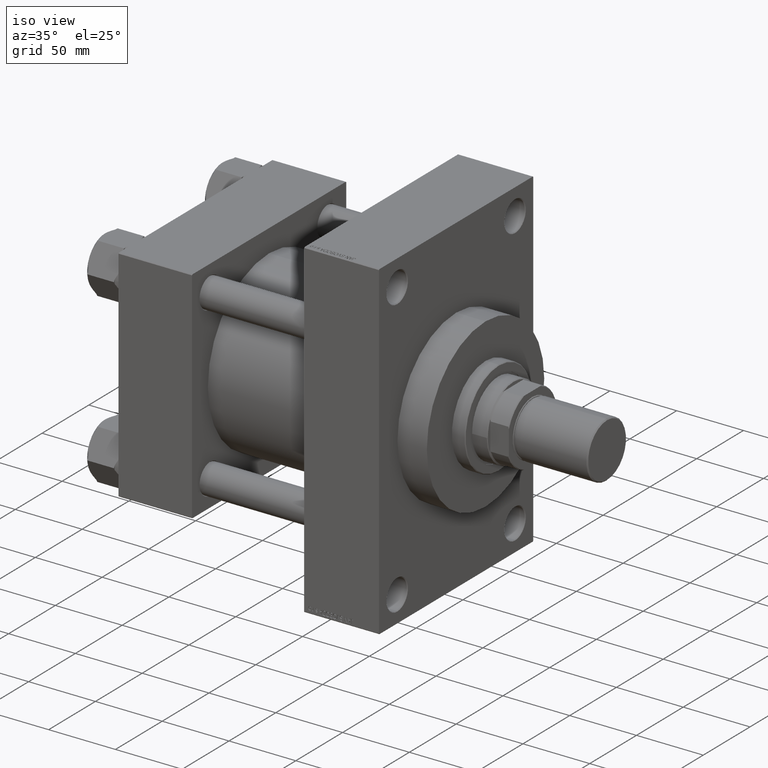
[diagram: clean part render]
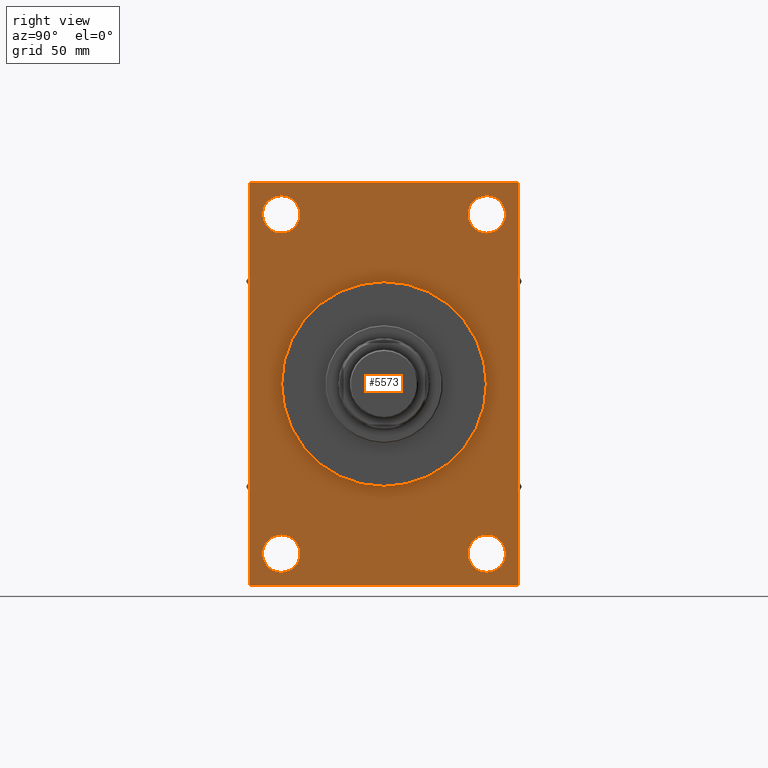
[diagram: tour spotlight — one face highlighted and labeled with its STEP entity id]
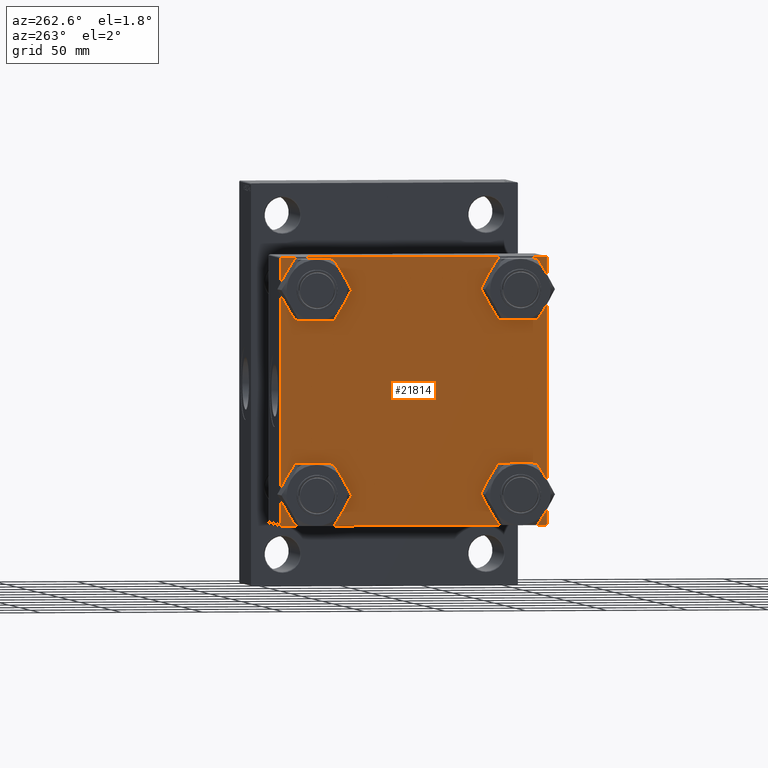
[diagram: tour spotlight — one face highlighted and labeled with its STEP entity id]
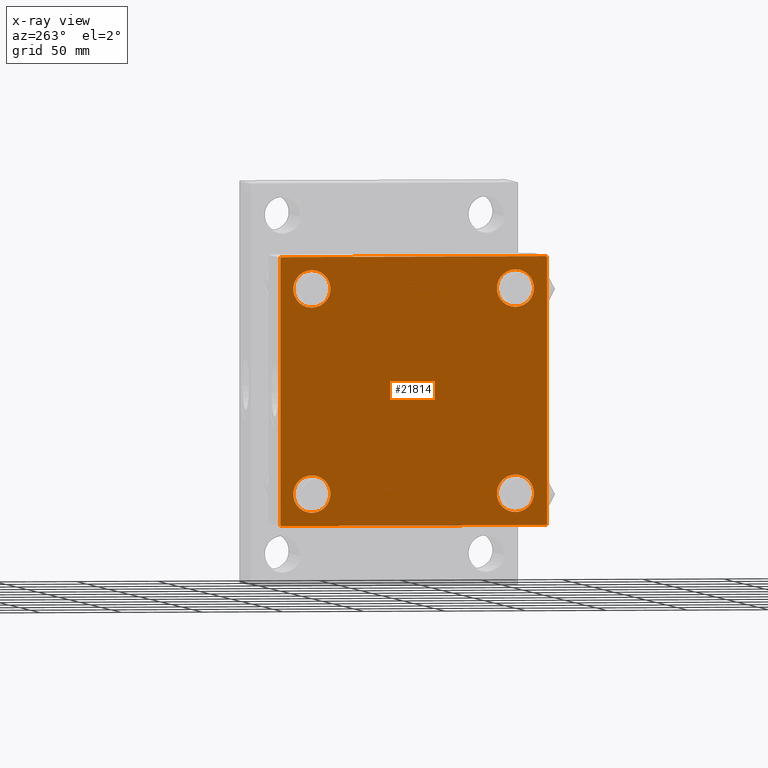
[diagram: x-ray of the same camera — body ghosted, this tour face saturated]
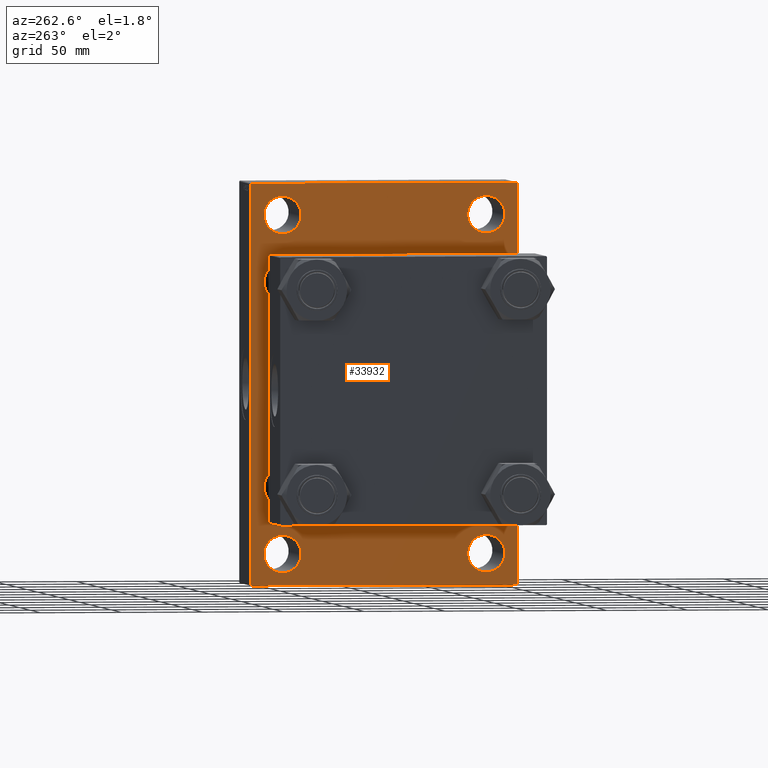
[diagram: tour spotlight — one face highlighted and labeled with its STEP entity id]
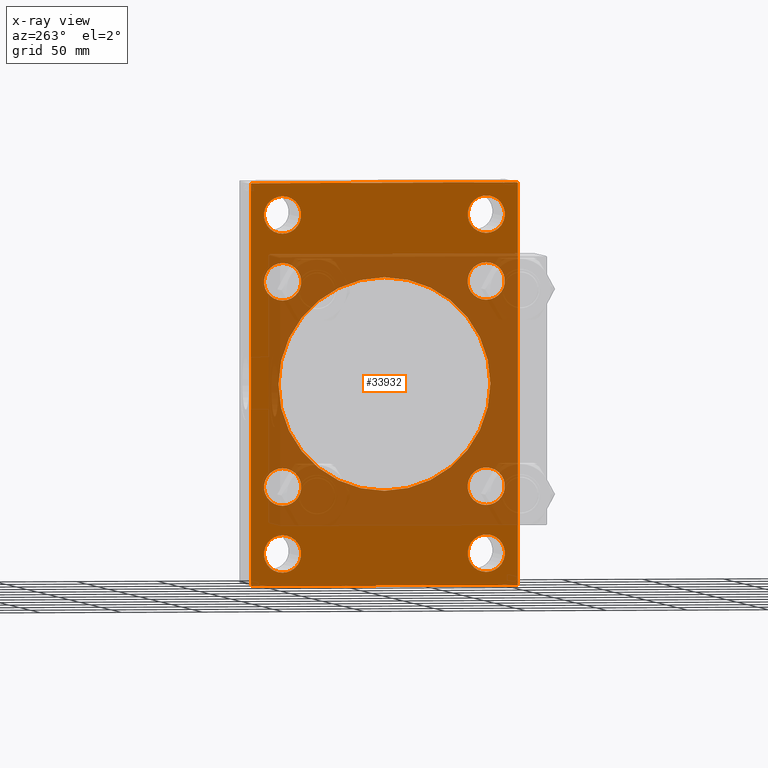
[diagram: x-ray of the same camera — body ghosted, this tour face saturated]
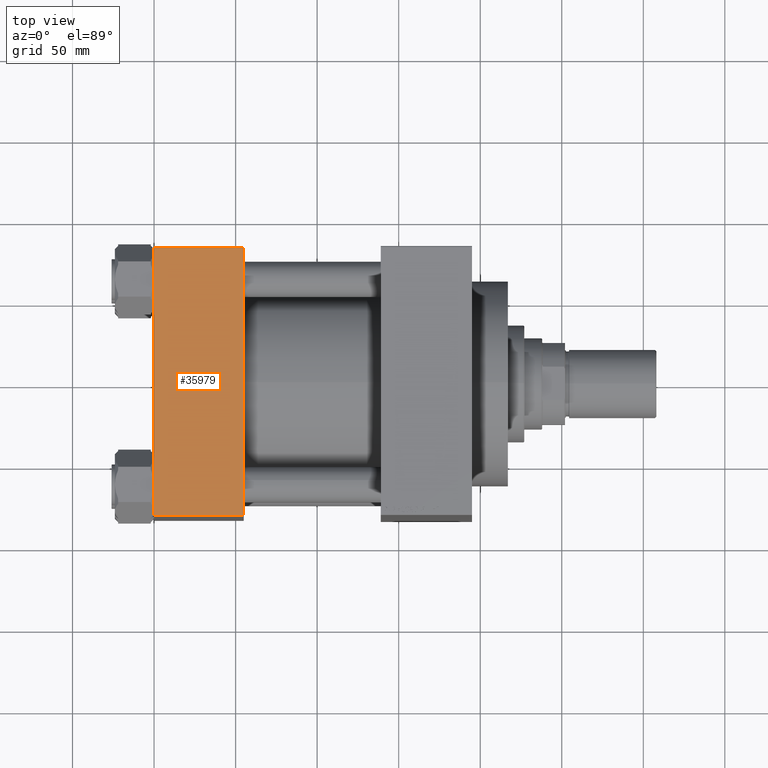
[diagram: tour spotlight — one face highlighted and labeled with its STEP entity id]
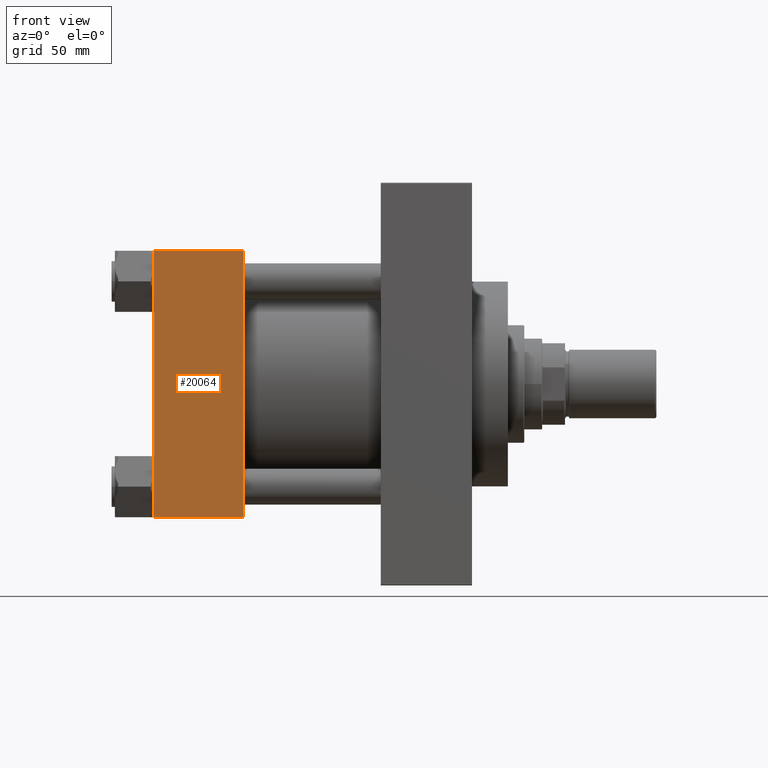
[diagram: tour spotlight — one face highlighted and labeled with its STEP entity id]
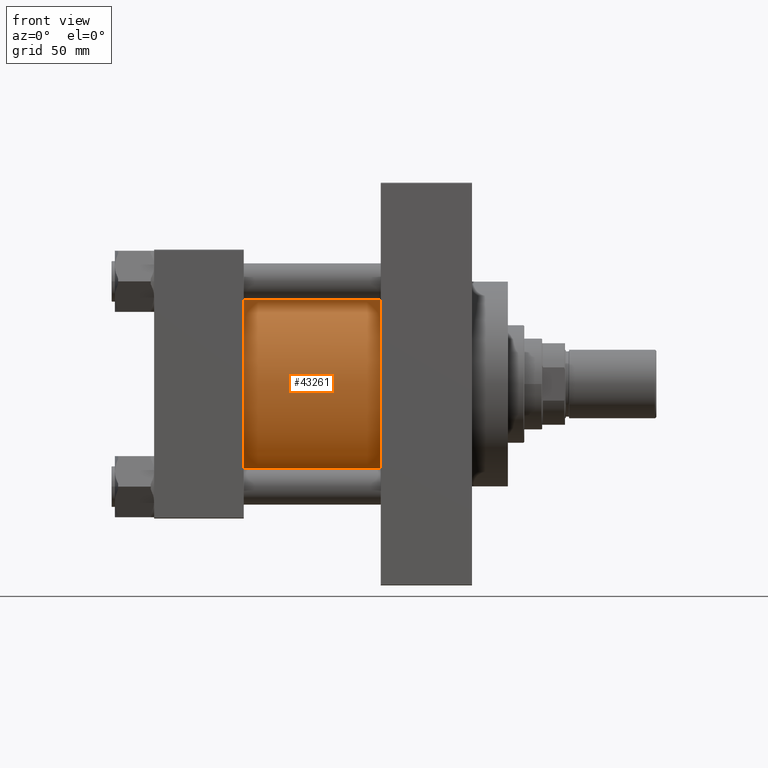
[diagram: tour spotlight — one face highlighted and labeled with its STEP entity id]
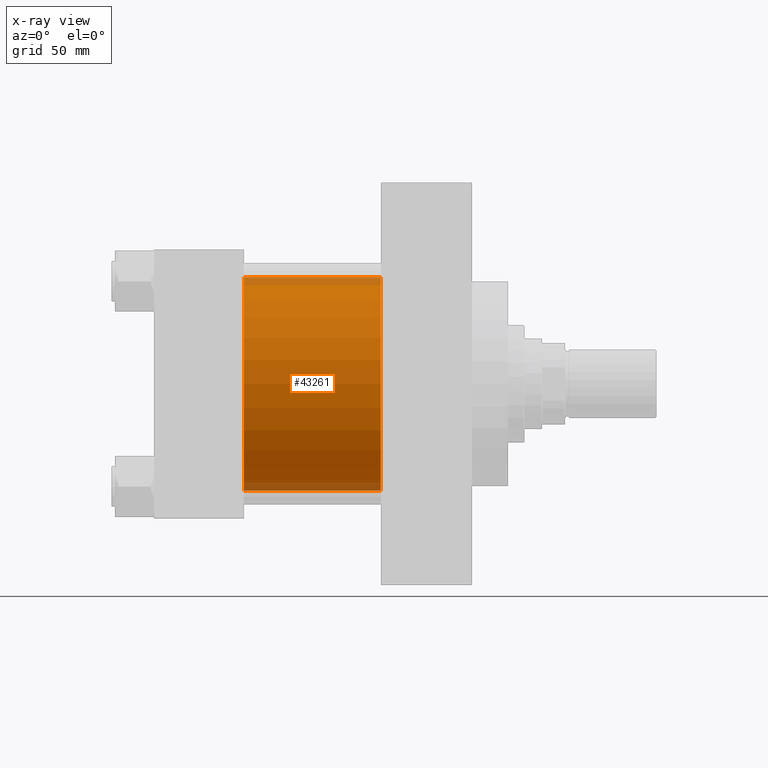
[diagram: x-ray of the same camera — body ghosted, this tour face saturated]
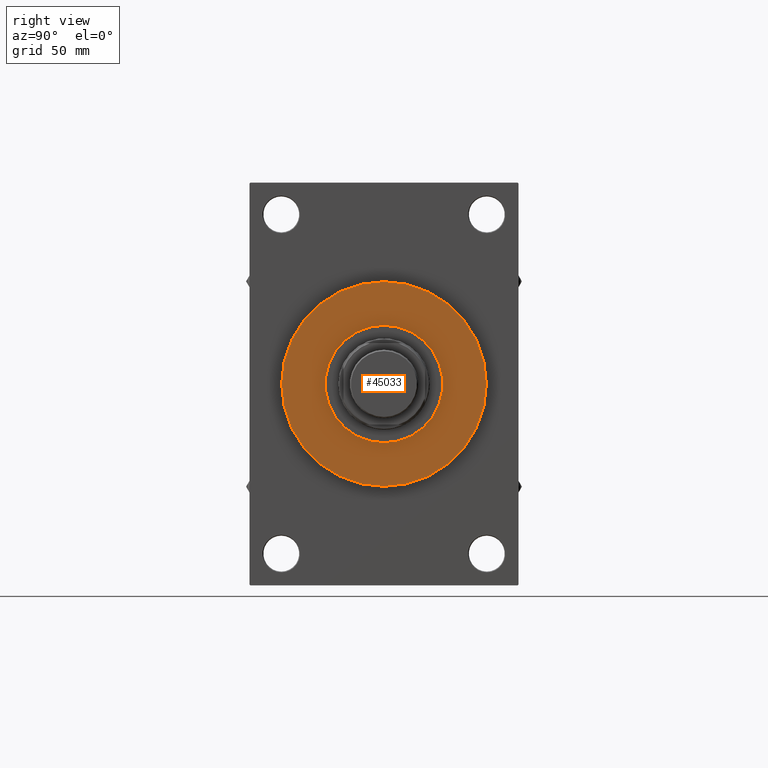
[diagram: tour spotlight — one face highlighted and labeled with its STEP entity id]
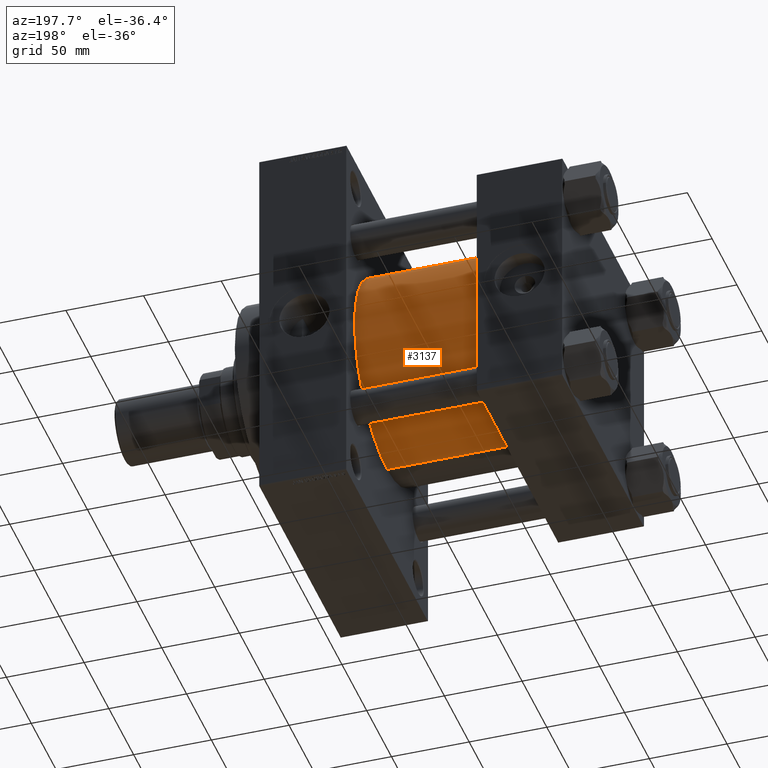
[diagram: tour spotlight — one face highlighted and labeled with its STEP entity id]
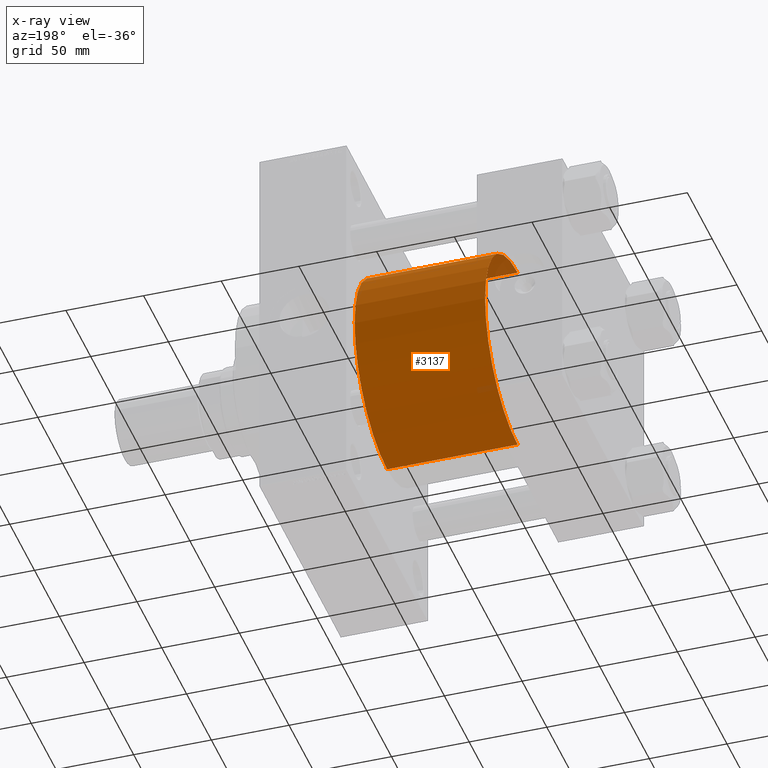
[diagram: x-ray of the same camera — body ghosted, this tour face saturated]
A machine part: a face-by-face anatomy tour. The part has 1163 B-rep faces; the first image is the clean iso view, then the 8 largest visible faces are spotlighted one at a time (largest first), each with its STEP entity span.

Face 1 — right view, entity #5573. In plain terms, the highlighted planar face has unit normal (-1, 0, 0).
Definition (entity closure, byte-faithful):
#64 = VECTOR ( 'NONE', #28029, 1000.000000000000000 ) ;
#107 = CIRCLE ( 'NONE', #21894, 62.75000000000000000 ) ;
#181 = CARTESIAN_POINT ( 'NONE',  ( 195.0000000000000000, 82.00000000000005684, -123.5000000000000000 ) ) ;
#256 = EDGE_CURVE ( 'NONE', #37295, #33401, #37728, .T. ) ;
#1784 = CARTESIAN_POINT ( 'NONE',  ( 195.0000000000000000, 82.50000000000000000, -123.0000000000000995 ) ) ;
#1947 = CARTESIAN_POINT ( 'NONE',  ( 195.0000000000000000, 82.00000000000004263, 123.5000000000000142 ) ) ;
#2178 = EDGE_CURVE ( 'NONE', #13064, #33583, #46768, .T. ) ;
#2316 = FACE_BOUND ( 'NONE', #20041, .T. ) ;
#2329 = CARTESIAN_POINT ( 'NONE',  ( 195.0000000000000000, 82.50000000000000000, -123.5000000000000000 ) ) ;
#2417 = AXIS2_PLACEMENT_3D ( 'NONE', #47241, #7069, #39948 ) ;
#2900 = VERTEX_POINT ( 'NONE', #43961 ) ;
#2978 = CIRCLE ( 'NONE', #31759, 11.50000000000006573 ) ;
#3801 = AXIS2_PLACEMENT_3D ( 'NONE', #13602, #32597, #28945 ) ;
#3972 = CIRCLE ( 'NONE', #2417, 11.49999999999989875 ) ;
#3997 = VECTOR ( 'NONE', #28699, 1000.000000000000000 ) ;
#4355 = CARTESIAN_POINT ( 'NONE',  ( 195.0000000000000000, 82.49999999999998579, 123.5000000000000142 ) ) ;
#4419 = DIRECTION ( 'NONE',  ( -1.000000000000000000, 0.000000000000000000, -0.000000000000000000 ) ) ;
#4664 = DIRECTION ( 'NONE',  ( 0.000000000000000000, 0.000000000000000000, 1.000000000000000000 ) ) ;
#5004 = EDGE_CURVE ( 'NONE', #39492, #5371, #30067, .T. ) ;
#5371 = VERTEX_POINT ( 'NONE', #19431 ) ;
#5573 = ADVANCED_FACE ( 'NONE', ( #2316, #10617, #6709, #28398, #18176, #32041 ), #25231, .F. ) ;
#5940 = VECTOR ( 'NONE', #9769, 1000.000000000000000 ) ;
#6345 = AXIS2_PLACEMENT_3D ( 'NONE', #37252, #30198, #37738 ) ;
#6709 = FACE_BOUND ( 'NONE', #30718, .T. ) ;
#6923 = VERTEX_POINT ( 'NONE', #25178 ) ;
#7069 = DIRECTION ( 'NONE',  ( -1.000000000000000000, 0.000000000000000000, -0.000000000000000000 ) ) ;
#7152 = DIRECTION ( 'NONE',  ( 0.000000000000000000, 0.000000000000000000, 1.000000000000000000 ) ) ;
#8162 = VERTEX_POINT ( 'NONE', #38668 ) ;
#8440 = CARTESIAN_POINT ( 'NONE',  ( 195.0000000000000000, -82.50000000000002842, 123.4999999999999716 ) ) ;
#8447 = CARTESIAN_POINT ( 'NONE',  ( 195.0000000000000000, 63.00000000000000000, 92.49999999999992895 ) ) ;
#8632 = AXIS2_PLACEMENT_3D ( 'NONE', #33896, #45789, #19050 ) ;
#8691 = ORIENTED_EDGE ( 'NONE', *, *, #20585, .T. ) ;
#9052 = CARTESIAN_POINT ( 'NONE',  ( 195.0000000000000000, -82.00000000000009948, 123.4999999999999716 ) ) ;
#9056 = AXIS2_PLACEMENT_3D ( 'NONE', #33131, #12982, #42681 ) ;
#9075 = EDGE_CURVE ( 'NONE', #8162, #11245, #48046, .T. ) ;
#9769 = DIRECTION ( 'NONE',  ( -0.000000000000000000, -0.7071067811865769936, -0.7071067811865181518 ) ) ;
#9985 = CIRCLE ( 'NONE', #42634, 11.50000000000006573 ) ;
#10002 = VERTEX_POINT ( 'NONE', #28509 ) ;
#10034 = ORIENTED_EDGE ( 'NONE', *, *, #2178, .T. ) ;
#10617 = FACE_BOUND ( 'NONE', #12128, .T. ) ;
#11036 = DIRECTION ( 'NONE',  ( -1.000000000000000000, 0.000000000000000000, -0.000000000000000000 ) ) ;
#11073 = ORIENTED_EDGE ( 'NONE', *, *, #32676, .T. ) ;
#11245 = VERTEX_POINT ( 'NONE', #8447 ) ;
#11596 = ORIENTED_EDGE ( 'NONE', *, *, #9075, .T. ) ;
#11609 = DIRECTION ( 'NONE',  ( 0.000000000000000000, 0.000000000000000000, -1.000000000000000000 ) ) ;
#11729 = CARTESIAN_POINT ( 'NONE',  ( 195.0000000000000000, -63.00000000000000000, 92.49999999999991473 ) ) ;
#12128 = EDGE_LOOP ( 'NONE', ( #20689, #45074 ) ) ;
#12713 = CIRCLE ( 'NONE', #44589, 11.49999999999989875 ) ;
#12958 = ORIENTED_EDGE ( 'NONE', *, *, #30114, .T. ) ;
#12982 = DIRECTION ( 'NONE',  ( -1.000000000000000000, 0.000000000000000000, -0.000000000000000000 ) ) ;
#13064 = VERTEX_POINT ( 'NONE', #9052 ) ;
#13602 = CARTESIAN_POINT ( 'NONE',  ( 195.0000000000000000, 63.00000000000000000, -104.0000000000000142 ) ) ;
#14178 = VERTEX_POINT ( 'NONE', #15058 ) ;
#15058 = CARTESIAN_POINT ( 'NONE',  ( 195.0000000000000000, 63.00000000000000000, -92.50000000000011369 ) ) ;
#15287 = DIRECTION ( 'NONE',  ( 0.000000000000000000, 0.000000000000000000, 1.000000000000000000 ) ) ;
#15414 = DIRECTION ( 'NONE',  ( 0.000000000000000000, 0.7071067811865573427, -0.7071067811865378028 ) ) ;
#16335 = ORIENTED_EDGE ( 'NONE', *, *, #5004, .T. ) ;
#16434 = LINE ( 'NONE', #28098, #32579 ) ;
#16563 = EDGE_CURVE ( 'NONE', #14178, #6923, #3972, .T. ) ;
#16588 = CARTESIAN_POINT ( 'NONE',  ( 195.0000000000000000, 0.000000000000000000, -62.75000000000000000 ) ) ;
#17030 = EDGE_CURVE ( 'NONE', #5371, #39492, #107, .T. ) ;
#17514 = EDGE_CURVE ( 'NONE', #6923, #14178, #34873, .T. ) ;
#18176 = FACE_BOUND ( 'NONE', #27767, .T. ) ;
#19050 = DIRECTION ( 'NONE',  ( 0.000000000000000000, 0.000000000000000000, 1.000000000000000000 ) ) ;
#19326 = EDGE_CURVE ( 'NONE', #21916, #27111, #2978, .T. ) ;
#19431 = CARTESIAN_POINT ( 'NONE',  ( 195.0000000000000000, 7.684658664649641591E-15, 62.75000000000000000 ) ) ;
#19694 = ORIENTED_EDGE ( 'NONE', *, *, #45230, .F. ) ;
#19907 = VERTEX_POINT ( 'NONE', #21149 ) ;
#19992 = EDGE_CURVE ( 'NONE', #27111, #21916, #9985, .T. ) ;
#20041 = EDGE_LOOP ( 'NONE', ( #40156, #35497 ) ) ;
#20585 = EDGE_CURVE ( 'NONE', #27006, #13064, #16434, .T. ) ;
#20689 = ORIENTED_EDGE ( 'NONE', *, *, #34691, .T. ) ;
#21149 = CARTESIAN_POINT ( 'NONE',  ( 195.0000000000000000, -82.00000000000002842, -123.5000000000000142 ) ) ;
#21238 = EDGE_LOOP ( 'NONE', ( #24416, #11596 ) ) ;
#21330 = DIRECTION ( 'NONE',  ( -1.000000000000000000, 0.000000000000000000, -0.000000000000000000 ) ) ;
#21894 = AXIS2_PLACEMENT_3D ( 'NONE', #29786, #11036, #36595 ) ;
#21916 = VERTEX_POINT ( 'NONE', #11729 ) ;
#22252 = LINE ( 'NONE', #25657, #46034 ) ;
#22638 = EDGE_LOOP ( 'NONE', ( #43085, #11073, #19694, #12958, #43215, #42795, #8691, #10034 ) ) ;
#24416 = ORIENTED_EDGE ( 'NONE', *, *, #28330, .T. ) ;
#24497 = CARTESIAN_POINT ( 'NONE',  ( 195.0000000000000000, -63.00000000000000000, 103.9999999999999858 ) ) ;
#25178 = CARTESIAN_POINT ( 'NONE',  ( 195.0000000000000000, 63.00000000000000000, -115.4999999999999147 ) ) ;
#25231 = PLANE ( 'NONE',  #25396 ) ;
#25243 = DIRECTION ( 'NONE',  ( 0.000000000000000000, -1.000000000000000000, -8.410780489584517938E-17 ) ) ;
#25396 = AXIS2_PLACEMENT_3D ( 'NONE', #25468, #36659, #29128 ) ;
#25468 = CARTESIAN_POINT ( 'NONE',  ( 195.0000000000000000, 0.000000000000000000, 0.000000000000000000 ) ) ;
#25657 = CARTESIAN_POINT ( 'NONE',  ( 195.0000000000000000, -82.00000000000002842, -123.5000000000000142 ) ) ;
#25674 = CARTESIAN_POINT ( 'NONE',  ( 195.0000000000000000, -63.00000000000000000, -104.0000000000000142 ) ) ;
#26773 = EDGE_CURVE ( 'NONE', #33583, #10002, #42242, .T. ) ;
#26962 = ORIENTED_EDGE ( 'NONE', *, *, #17514, .T. ) ;
#27006 = VERTEX_POINT ( 'NONE', #41002 ) ;
#27111 = VERTEX_POINT ( 'NONE', #33705 ) ;
#27767 = EDGE_LOOP ( 'NONE', ( #16335, #33578 ) ) ;
#28029 = DIRECTION ( 'NONE',  ( 0.000000000000000000, -0.7071067811865081598, 0.7071067811865868746 ) ) ;
#28098 = CARTESIAN_POINT ( 'NONE',  ( 195.0000000000000000, 82.49999999999998579, 123.5000000000000142 ) ) ;
#28330 = EDGE_CURVE ( 'NONE', #11245, #8162, #34284, .T. ) ;
#28398 = FACE_BOUND ( 'NONE', #21238, .T. ) ;
#28509 = CARTESIAN_POINT ( 'NONE',  ( 195.0000000000000000, -82.50000000000002842, -123.0000000000000284 ) ) ;
#28699 = DIRECTION ( 'NONE',  ( -0.000000000000000000, 0.7071067811865769936, 0.7071067811865181518 ) ) ;
#28754 = VECTOR ( 'NONE', #11609, 1000.000000000000000 ) ;
#28945 = DIRECTION ( 'NONE',  ( 0.000000000000000000, 0.000000000000000000, 1.000000000000000000 ) ) ;
#29128 = DIRECTION ( 'NONE',  ( -0.000000000000000000, 0.000000000000000000, 1.000000000000000000 ) ) ;
#29737 = EDGE_CURVE ( 'NONE', #37295, #27006, #42148, .T. ) ;
#29786 = CARTESIAN_POINT ( 'NONE',  ( 195.0000000000000000, 0.000000000000000000, 0.000000000000000000 ) ) ;
#30067 = CIRCLE ( 'NONE', #9056, 62.75000000000000000 ) ;
#30114 = EDGE_CURVE ( 'NONE', #32131, #33401, #32097, .T. ) ;
#30198 = DIRECTION ( 'NONE',  ( -1.000000000000000000, 0.000000000000000000, -0.000000000000000000 ) ) ;
#30718 = EDGE_LOOP ( 'NONE', ( #26962, #41302 ) ) ;
#31729 = AXIS2_PLACEMENT_3D ( 'NONE', #38501, #4419, #4664 ) ;
#31730 = EDGE_CURVE ( 'NONE', #37546, #2900, #33622, .T. ) ;
#31759 = AXIS2_PLACEMENT_3D ( 'NONE', #24497, #21330, #43700 ) ;
#32041 = FACE_OUTER_BOUND ( 'NONE', #22638, .T. ) ;
#32097 = LINE ( 'NONE', #46949, #3997 ) ;
#32131 = VERTEX_POINT ( 'NONE', #181 ) ;
#32479 = CARTESIAN_POINT ( 'NONE',  ( 195.0000000000000000, -82.50000000000002842, 123.0000000000000853 ) ) ;
#32579 = VECTOR ( 'NONE', #42932, 1000.000000000000000 ) ;
#32597 = DIRECTION ( 'NONE',  ( -1.000000000000000000, 0.000000000000000000, -0.000000000000000000 ) ) ;
#32676 = EDGE_CURVE ( 'NONE', #10002, #19907, #22252, .T. ) ;
#33131 = CARTESIAN_POINT ( 'NONE',  ( 195.0000000000000000, 0.000000000000000000, 0.000000000000000000 ) ) ;
#33401 = VERTEX_POINT ( 'NONE', #1784 ) ;
#33578 = ORIENTED_EDGE ( 'NONE', *, *, #17030, .T. ) ;
#33583 = VERTEX_POINT ( 'NONE', #32479 ) ;
#33622 = CIRCLE ( 'NONE', #6345, 11.49999999999989875 ) ;
#33705 = CARTESIAN_POINT ( 'NONE',  ( 195.0000000000000000, -63.00000000000000000, 115.5000000000000426 ) ) ;
#33896 = CARTESIAN_POINT ( 'NONE',  ( 195.0000000000000000, 63.00000000000000000, 104.0000000000000000 ) ) ;
#34284 = CIRCLE ( 'NONE', #8632, 11.50000000000006573 ) ;
#34691 = EDGE_CURVE ( 'NONE', #2900, #37546, #12713, .T. ) ;
#34873 = CIRCLE ( 'NONE', #3801, 11.49999999999989875 ) ;
#35497 = ORIENTED_EDGE ( 'NONE', *, *, #19992, .T. ) ;
#36199 = CARTESIAN_POINT ( 'NONE',  ( 195.0000000000000000, 82.49999999999998579, 123.0000000000000142 ) ) ;
#36595 = DIRECTION ( 'NONE',  ( 0.000000000000000000, 0.000000000000000000, 1.000000000000000000 ) ) ;
#36659 = DIRECTION ( 'NONE',  ( -1.000000000000000000, 0.000000000000000000, -0.000000000000000000 ) ) ;
#37252 = CARTESIAN_POINT ( 'NONE',  ( 195.0000000000000000, -63.00000000000000000, -104.0000000000000142 ) ) ;
#37295 = VERTEX_POINT ( 'NONE', #36199 ) ;
#37546 = VERTEX_POINT ( 'NONE', #40470 ) ;
#37728 = LINE ( 'NONE', #4355, #47071 ) ;
#37738 = DIRECTION ( 'NONE',  ( 0.000000000000000000, 0.000000000000000000, 1.000000000000000000 ) ) ;
#37919 = DIRECTION ( 'NONE',  ( -1.000000000000000000, 0.000000000000000000, -0.000000000000000000 ) ) ;
#38501 = CARTESIAN_POINT ( 'NONE',  ( 195.0000000000000000, 63.00000000000000000, 104.0000000000000000 ) ) ;
#38668 = CARTESIAN_POINT ( 'NONE',  ( 195.0000000000000000, 63.00000000000000000, 115.5000000000000568 ) ) ;
#39492 = VERTEX_POINT ( 'NONE', #16588 ) ;
#39948 = DIRECTION ( 'NONE',  ( 0.000000000000000000, 0.000000000000000000, 1.000000000000000000 ) ) ;
#40156 = ORIENTED_EDGE ( 'NONE', *, *, #19326, .T. ) ;
#40328 = LINE ( 'NONE', #2329, #48011 ) ;
#40470 = CARTESIAN_POINT ( 'NONE',  ( 195.0000000000000000, -63.00000000000000000, -92.50000000000011369 ) ) ;
#40518 = DIRECTION ( 'NONE',  ( -1.000000000000000000, 0.000000000000000000, -0.000000000000000000 ) ) ;
#41002 = CARTESIAN_POINT ( 'NONE',  ( 195.0000000000000000, 82.00000000000004263, 123.5000000000000142 ) ) ;
#41302 = ORIENTED_EDGE ( 'NONE', *, *, #16563, .T. ) ;
#42148 = LINE ( 'NONE', #1947, #64 ) ;
#42242 = LINE ( 'NONE', #8440, #28754 ) ;
#42634 = AXIS2_PLACEMENT_3D ( 'NONE', #48147, #37919, #15287 ) ;
#42681 = DIRECTION ( 'NONE',  ( 0.000000000000000000, 0.000000000000000000, 1.000000000000000000 ) ) ;
#42795 = ORIENTED_EDGE ( 'NONE', *, *, #29737, .T. ) ;
#42932 = DIRECTION ( 'NONE',  ( 0.000000000000000000, -1.000000000000000000, -2.523234146875355505E-16 ) ) ;
#43085 = ORIENTED_EDGE ( 'NONE', *, *, #26773, .T. ) ;
#43110 = CARTESIAN_POINT ( 'NONE',  ( 195.0000000000000000, -82.50000000000002842, 123.0000000000000853 ) ) ;
#43215 = ORIENTED_EDGE ( 'NONE', *, *, #256, .F. ) ;
#43700 = DIRECTION ( 'NONE',  ( 0.000000000000000000, 0.000000000000000000, 1.000000000000000000 ) ) ;
#43961 = CARTESIAN_POINT ( 'NONE',  ( 195.0000000000000000, -63.00000000000000000, -115.4999999999999147 ) ) ;
#44589 = AXIS2_PLACEMENT_3D ( 'NONE', #25674, #40518, #7152 ) ;
#45074 = ORIENTED_EDGE ( 'NONE', *, *, #31730, .T. ) ;
#45230 = EDGE_CURVE ( 'NONE', #32131, #19907, #40328, .T. ) ;
#45789 = DIRECTION ( 'NONE',  ( -1.000000000000000000, 0.000000000000000000, -0.000000000000000000 ) ) ;
#46034 = VECTOR ( 'NONE', #15414, 1000.000000000000000 ) ;
#46443 = DIRECTION ( 'NONE',  ( 0.000000000000000000, 5.618537574013950123E-17, -1.000000000000000000 ) ) ;
#46768 = LINE ( 'NONE', #43110, #5940 ) ;
#46949 = CARTESIAN_POINT ( 'NONE',  ( 195.0000000000000000, 82.50000000000000000, -123.0000000000000995 ) ) ;
#47071 = VECTOR ( 'NONE', #46443, 1000.000000000000000 ) ;
#47241 = CARTESIAN_POINT ( 'NONE',  ( 195.0000000000000000, 63.00000000000000000, -104.0000000000000142 ) ) ;
#48011 = VECTOR ( 'NONE', #25243, 1000.000000000000000 ) ;
#48046 = CIRCLE ( 'NONE', #31729, 11.50000000000006573 ) ;
#48147 = CARTESIAN_POINT ( 'NONE',  ( 195.0000000000000000, -63.00000000000000000, 103.9999999999999858 ) ) ;

Face 2 — auxiliary view, entity #21814. An x-ray twin of the same camera follows (body ghosted, this face saturated) — the face is partly hidden behind the body. In plain terms, the highlighted planar face has unit normal (-1, 0, 0).
Definition (entity closure, byte-faithful):
#163 = DIRECTION ( 'NONE',  ( 0.000000000000000000, -1.000000000000000000, -1.682156097916903588E-16 ) ) ;
#374 = CARTESIAN_POINT ( 'NONE',  ( 0.000000000000000000, 62.95000000000000284, 62.95000000000000284 ) ) ;
#409 = CARTESIAN_POINT ( 'NONE',  ( 0.000000000000000000, 82.50000000000002842, -82.49999999999997158 ) ) ;
#877 = CARTESIAN_POINT ( 'NONE',  ( 0.000000000000000000, -62.94999999999998153, 62.95000000000001705 ) ) ;
#880 = LINE ( 'NONE', #409, #20135 ) ;
#1327 = DIRECTION ( 'NONE',  ( 1.000000000000000000, -0.000000000000000000, -0.000000000000000000 ) ) ;
#1817 = DIRECTION ( 'NONE',  ( 0.000000000000000000, 0.000000000000000000, 1.000000000000000000 ) ) ;
#2266 = AXIS2_PLACEMENT_3D ( 'NONE', #3191, #43862, #29271 ) ;
#2280 = CARTESIAN_POINT ( 'NONE',  ( 0.000000000000000000, 62.95000000000000284, -62.95000000000000284 ) ) ;
#2299 = AXIS2_PLACEMENT_3D ( 'NONE', #8668, #1327, #31058 ) ;
#2336 = AXIS2_PLACEMENT_3D ( 'NONE', #22956, #40948, #26111 ) ;
#2437 = CARTESIAN_POINT ( 'NONE',  ( 0.000000000000000000, -62.94999999999998153, -51.45000000000000995 ) ) ;
#2506 = CIRCLE ( 'NONE', #19645, 11.50000000000001066 ) ;
#2698 = EDGE_CURVE ( 'NONE', #19758, #9016, #28154, .T. ) ;
#2852 = EDGE_CURVE ( 'NONE', #26707, #5318, #21546, .T. ) ;
#3009 = EDGE_CURVE ( 'NONE', #38899, #14105, #17638, .T. ) ;
#3084 = VERTEX_POINT ( 'NONE', #10079 ) ;
#3191 = CARTESIAN_POINT ( 'NONE',  ( 0.000000000000000000, 0.000000000000000000, 0.000000000000000000 ) ) ;
#3258 = EDGE_LOOP ( 'NONE', ( #15643, #26236 ) ) ;
#3291 = DIRECTION ( 'NONE',  ( 0.000000000000000000, 0.000000000000000000, 1.000000000000000000 ) ) ;
#4577 = ORIENTED_EDGE ( 'NONE', *, *, #28966, .T. ) ;
#4609 = CARTESIAN_POINT ( 'NONE',  ( 0.000000000000000000, 82.25000000000001421, -82.25000000000001421 ) ) ;
#5025 = CARTESIAN_POINT ( 'NONE',  ( 0.000000000000000000, 62.95000000000000284, -51.44999999999999574 ) ) ;
#5063 = EDGE_CURVE ( 'NONE', #38248, #17214, #16807, .T. ) ;
#5318 = VERTEX_POINT ( 'NONE', #29419 ) ;
#5683 = DIRECTION ( 'NONE',  ( 0.000000000000000000, 0.000000000000000000, -1.000000000000000000 ) ) ;
#5844 = ORIENTED_EDGE ( 'NONE', *, *, #27356, .T. ) ;
#6982 = CARTESIAN_POINT ( 'NONE',  ( 0.000000000000000000, 62.95000000000000284, 51.44999999999999574 ) ) ;
#7274 = ORIENTED_EDGE ( 'NONE', *, *, #3009, .T. ) ;
#7516 = ORIENTED_EDGE ( 'NONE', *, *, #42647, .T. ) ;
#7730 = EDGE_CURVE ( 'NONE', #21501, #30250, #8347, .T. ) ;
#7966 = ORIENTED_EDGE ( 'NONE', *, *, #11912, .T. ) ;
#8347 = CIRCLE ( 'NONE', #44080, 11.50000000000001066 ) ;
#8454 = EDGE_CURVE ( 'NONE', #41822, #39563, #24698, .T. ) ;
#8668 = CARTESIAN_POINT ( 'NONE',  ( 0.000000000000000000, -62.94999999999998153, 62.95000000000001705 ) ) ;
#9016 = VERTEX_POINT ( 'NONE', #22481 ) ;
#10079 = CARTESIAN_POINT ( 'NONE',  ( 0.000000000000000000, 82.00000000000005684, -82.49999999999997158 ) ) ;
#10170 = VECTOR ( 'NONE', #22115, 1000.000000000000000 ) ;
#11237 = LINE ( 'NONE', #25844, #35392 ) ;
#11447 = CARTESIAN_POINT ( 'NONE',  ( 0.000000000000000000, -82.00000000000000000, -82.50000000000000000 ) ) ;
#11912 = EDGE_CURVE ( 'NONE', #3084, #31709, #880, .T. ) ;
#11924 = EDGE_LOOP ( 'NONE', ( #5844, #43332 ) ) ;
#11932 = DIRECTION ( 'NONE',  ( -0.000000000000000000, -0.7071067811865474617, -0.7071067811865474617 ) ) ;
#12588 = DIRECTION ( 'NONE',  ( 0.000000000000000000, 0.000000000000000000, 1.000000000000000000 ) ) ;
#12823 = CARTESIAN_POINT ( 'NONE',  ( 0.000000000000000000, -62.94999999999998153, 51.45000000000000995 ) ) ;
#12935 = AXIS2_PLACEMENT_3D ( 'NONE', #27026, #30208, #34093 ) ;
#12951 = ORIENTED_EDGE ( 'NONE', *, *, #33103, .T. ) ;
#13812 = AXIS2_PLACEMENT_3D ( 'NONE', #877, #23075, #1817 ) ;
#14105 = VERTEX_POINT ( 'NONE', #24583 ) ;
#14409 = FACE_BOUND ( 'NONE', #3258, .T. ) ;
#14472 = ORIENTED_EDGE ( 'NONE', *, *, #47600, .T. ) ;
#14543 = CARTESIAN_POINT ( 'NONE',  ( 0.000000000000000000, 82.50000000000002842, 82.50000000000002842 ) ) ;
#14648 = FACE_BOUND ( 'NONE', #17059, .T. ) ;
#14717 = ORIENTED_EDGE ( 'NONE', *, *, #2698, .F. ) ;
#14890 = FACE_BOUND ( 'NONE', #11924, .T. ) ;
#15616 = VERTEX_POINT ( 'NONE', #44729 ) ;
#15642 = EDGE_CURVE ( 'NONE', #15616, #35480, #32576, .T. ) ;
#15643 = ORIENTED_EDGE ( 'NONE', *, *, #22470, .T. ) ;
#15688 = CARTESIAN_POINT ( 'NONE',  ( 0.000000000000000000, -82.25000000000115108, -82.24999999999886313 ) ) ;
#16692 = DIRECTION ( 'NONE',  ( 1.000000000000000000, -0.000000000000000000, -0.000000000000000000 ) ) ;
#16807 = CIRCLE ( 'NONE', #12935, 11.50000000000001066 ) ;
#17059 = EDGE_LOOP ( 'NONE', ( #12951, #31873 ) ) ;
#17214 = VERTEX_POINT ( 'NONE', #2437 ) ;
#17638 = LINE ( 'NONE', #32473, #27749 ) ;
#18286 = EDGE_CURVE ( 'NONE', #31709, #9016, #45143, .T. ) ;
#18322 = FACE_BOUND ( 'NONE', #24125, .T. ) ;
#19645 = AXIS2_PLACEMENT_3D ( 'NONE', #42998, #24761, #12588 ) ;
#19758 = VERTEX_POINT ( 'NONE', #42796 ) ;
#20135 = VECTOR ( 'NONE', #163, 1000.000000000000000 ) ;
#21061 = DIRECTION ( 'NONE',  ( 0.000000000000000000, 0.000000000000000000, 1.000000000000000000 ) ) ;
#21501 = VERTEX_POINT ( 'NONE', #27449 ) ;
#21546 = CIRCLE ( 'NONE', #37073, 11.50000000000001066 ) ;
#21814 = ADVANCED_FACE ( 'NONE', ( #14409, #14890, #14648, #18322, #33403 ), #25854, .T. ) ;
#22115 = DIRECTION ( 'NONE',  ( 0.000000000000000000, -1.000000000000000000, -8.410780489584519171E-17 ) ) ;
#22470 = EDGE_CURVE ( 'NONE', #39563, #41822, #23357, .T. ) ;
#22481 = CARTESIAN_POINT ( 'NONE',  ( 0.000000000000000000, -82.50000000000000000, -81.99999999999998579 ) ) ;
#22956 = CARTESIAN_POINT ( 'NONE',  ( 0.000000000000000000, -62.94999999999998153, -62.95000000000001705 ) ) ;
#23075 = DIRECTION ( 'NONE',  ( 1.000000000000000000, -0.000000000000000000, -0.000000000000000000 ) ) ;
#23357 = CIRCLE ( 'NONE', #2299, 11.50000000000001066 ) ;
#24125 = EDGE_LOOP ( 'NONE', ( #25853, #32868 ) ) ;
#24583 = CARTESIAN_POINT ( 'NONE',  ( 0.000000000000000000, 82.50000000000002842, -82.00000000000000000 ) ) ;
#24698 = CIRCLE ( 'NONE', #13812, 11.50000000000001066 ) ;
#24761 = DIRECTION ( 'NONE',  ( 1.000000000000000000, -0.000000000000000000, -0.000000000000000000 ) ) ;
#24994 = CARTESIAN_POINT ( 'NONE',  ( 0.000000000000000000, -82.49999999999997158, 82.50000000000001421 ) ) ;
#25165 = AXIS2_PLACEMENT_3D ( 'NONE', #33109, #37241, #36997 ) ;
#25440 = ORIENTED_EDGE ( 'NONE', *, *, #15642, .F. ) ;
#25630 = CARTESIAN_POINT ( 'NONE',  ( 0.000000000000000000, -62.94999999999998153, -74.45000000000003126 ) ) ;
#25844 = CARTESIAN_POINT ( 'NONE',  ( 0.000000000000000000, -82.25000000000000000, 82.25000000000000000 ) ) ;
#25853 = ORIENTED_EDGE ( 'NONE', *, *, #38719, .T. ) ;
#25854 = PLANE ( 'NONE',  #2266 ) ;
#26111 = DIRECTION ( 'NONE',  ( 0.000000000000000000, 0.000000000000000000, 1.000000000000000000 ) ) ;
#26236 = ORIENTED_EDGE ( 'NONE', *, *, #8454, .T. ) ;
#26707 = VERTEX_POINT ( 'NONE', #6982 ) ;
#27026 = CARTESIAN_POINT ( 'NONE',  ( 0.000000000000000000, -62.94999999999998153, -62.95000000000001705 ) ) ;
#27056 = VECTOR ( 'NONE', #27828, 999.9999999999998863 ) ;
#27356 = EDGE_CURVE ( 'NONE', #17214, #38248, #32678, .T. ) ;
#27449 = CARTESIAN_POINT ( 'NONE',  ( 0.000000000000000000, 62.95000000000000284, -74.45000000000001705 ) ) ;
#27709 = CARTESIAN_POINT ( 'NONE',  ( 0.000000000000000000, 82.50000000000002842, 82.00000000000005684 ) ) ;
#27749 = VECTOR ( 'NONE', #5683, 1000.000000000000000 ) ;
#27828 = DIRECTION ( 'NONE',  ( 0.000000000000000000, -0.7071067811865376918, 0.7071067811865574537 ) ) ;
#28154 = LINE ( 'NONE', #24994, #47950 ) ;
#28425 = CARTESIAN_POINT ( 'NONE',  ( 0.000000000000000000, 82.25000000000002842, 82.25000000000002842 ) ) ;
#28966 = EDGE_CURVE ( 'NONE', #14105, #3084, #38916, .T. ) ;
#29271 = DIRECTION ( 'NONE',  ( 0.000000000000000000, 0.000000000000000000, 1.000000000000000000 ) ) ;
#29419 = CARTESIAN_POINT ( 'NONE',  ( 0.000000000000000000, 62.95000000000000284, 74.45000000000001705 ) ) ;
#29855 = DIRECTION ( 'NONE',  ( 1.000000000000000000, -0.000000000000000000, -0.000000000000000000 ) ) ;
#30208 = DIRECTION ( 'NONE',  ( 1.000000000000000000, -0.000000000000000000, -0.000000000000000000 ) ) ;
#30250 = VERTEX_POINT ( 'NONE', #5025 ) ;
#31058 = DIRECTION ( 'NONE',  ( 0.000000000000000000, 0.000000000000000000, 1.000000000000000000 ) ) ;
#31709 = VERTEX_POINT ( 'NONE', #11447 ) ;
#31873 = ORIENTED_EDGE ( 'NONE', *, *, #7730, .T. ) ;
#32473 = CARTESIAN_POINT ( 'NONE',  ( 0.000000000000000000, 82.50000000000002842, 82.50000000000002842 ) ) ;
#32576 = LINE ( 'NONE', #14543, #10170 ) ;
#32678 = CIRCLE ( 'NONE', #2336, 11.50000000000001066 ) ;
#32745 = VECTOR ( 'NONE', #11932, 1000.000000000000114 ) ;
#32868 = ORIENTED_EDGE ( 'NONE', *, *, #2852, .T. ) ;
#33044 = DIRECTION ( 'NONE',  ( 0.000000000000000000, 0.7071067811865474617, -0.7071067811865474617 ) ) ;
#33103 = EDGE_CURVE ( 'NONE', #30250, #21501, #2506, .T. ) ;
#33109 = CARTESIAN_POINT ( 'NONE',  ( 0.000000000000000000, 62.95000000000000284, 62.95000000000000284 ) ) ;
#33403 = FACE_OUTER_BOUND ( 'NONE', #35932, .T. ) ;
#34093 = DIRECTION ( 'NONE',  ( 0.000000000000000000, 0.000000000000000000, 1.000000000000000000 ) ) ;
#35392 = VECTOR ( 'NONE', #40929, 1000.000000000000114 ) ;
#35451 = DIRECTION ( 'NONE',  ( 0.000000000000000000, -1.682156097916903588E-16, -1.000000000000000000 ) ) ;
#35480 = VERTEX_POINT ( 'NONE', #46718 ) ;
#35932 = EDGE_LOOP ( 'NONE', ( #7274, #4577, #7966, #37536, #14717, #7516, #25440, #14472 ) ) ;
#36997 = DIRECTION ( 'NONE',  ( 0.000000000000000000, 0.000000000000000000, 1.000000000000000000 ) ) ;
#37073 = AXIS2_PLACEMENT_3D ( 'NONE', #374, #29855, #3291 ) ;
#37241 = DIRECTION ( 'NONE',  ( 1.000000000000000000, -0.000000000000000000, -0.000000000000000000 ) ) ;
#37536 = ORIENTED_EDGE ( 'NONE', *, *, #18286, .T. ) ;
#38248 = VERTEX_POINT ( 'NONE', #25630 ) ;
#38719 = EDGE_CURVE ( 'NONE', #5318, #26707, #46130, .T. ) ;
#38899 = VERTEX_POINT ( 'NONE', #27709 ) ;
#38916 = LINE ( 'NONE', #4609, #32745 ) ;
#39213 = CARTESIAN_POINT ( 'NONE',  ( 0.000000000000000000, -62.94999999999998153, 74.45000000000003126 ) ) ;
#39563 = VERTEX_POINT ( 'NONE', #39213 ) ;
#40929 = DIRECTION ( 'NONE',  ( -0.000000000000000000, 0.7071067811865474617, 0.7071067811865474617 ) ) ;
#40948 = DIRECTION ( 'NONE',  ( 1.000000000000000000, -0.000000000000000000, -0.000000000000000000 ) ) ;
#41822 = VERTEX_POINT ( 'NONE', #12823 ) ;
#42647 = EDGE_CURVE ( 'NONE', #19758, #35480, #11237, .T. ) ;
#42796 = CARTESIAN_POINT ( 'NONE',  ( 0.000000000000000000, -82.49999999999997158, 82.00000000000001421 ) ) ;
#42998 = CARTESIAN_POINT ( 'NONE',  ( 0.000000000000000000, 62.95000000000000284, -62.95000000000000284 ) ) ;
#43263 = LINE ( 'NONE', #28425, #46159 ) ;
#43332 = ORIENTED_EDGE ( 'NONE', *, *, #5063, .T. ) ;
#43862 = DIRECTION ( 'NONE',  ( -1.000000000000000000, 0.000000000000000000, 0.000000000000000000 ) ) ;
#44080 = AXIS2_PLACEMENT_3D ( 'NONE', #2280, #16692, #21061 ) ;
#44729 = CARTESIAN_POINT ( 'NONE',  ( 0.000000000000000000, 82.00000000000005684, 82.50000000000002842 ) ) ;
#45143 = LINE ( 'NONE', #15688, #27056 ) ;
#46130 = CIRCLE ( 'NONE', #25165, 11.50000000000001066 ) ;
#46159 = VECTOR ( 'NONE', #33044, 1000.000000000000114 ) ;
#46718 = CARTESIAN_POINT ( 'NONE',  ( 0.000000000000000000, -81.99999999999997158, 82.50000000000001421 ) ) ;
#47600 = EDGE_CURVE ( 'NONE', #15616, #38899, #43263, .T. ) ;
#47950 = VECTOR ( 'NONE', #35451, 1000.000000000000000 ) ;

Face 3 — auxiliary view, entity #33932. An x-ray twin of the same camera follows (body ghosted, this face saturated) — the face is partly hidden behind the body. In plain terms, the highlighted planar face has unit normal (-1, 0, 0).
Definition (entity closure, byte-faithful):
#267 = VERTEX_POINT ( 'NONE', #20888 ) ;
#1763 = CARTESIAN_POINT ( 'NONE',  ( 139.0000000000000000, -2.602085213965210642E-15, 65.50000000000001421 ) ) ;
#2319 = EDGE_LOOP ( 'NONE', ( #35786, #30770 ) ) ;
#2750 = AXIS2_PLACEMENT_3D ( 'NONE', #17956, #3547, #40576 ) ;
#3102 = LINE ( 'NONE', #17984, #22901 ) ;
#3547 = DIRECTION ( 'NONE',  ( 1.000000000000000000, -0.000000000000000000, 0.000000000000000000 ) ) ;
#3562 = VERTEX_POINT ( 'NONE', #3603 ) ;
#3603 = CARTESIAN_POINT ( 'NONE',  ( 139.0000000000000000, -63.00000000000000000, 115.4999999999999858 ) ) ;
#3669 = FACE_BOUND ( 'NONE', #28479, .T. ) ;
#3781 = AXIS2_PLACEMENT_3D ( 'NONE', #6872, #39759, #36100 ) ;
#3806 = ORIENTED_EDGE ( 'NONE', *, *, #14362, .T. ) ;
#4165 = EDGE_CURVE ( 'NONE', #8720, #10742, #30785, .T. ) ;
#4393 = FACE_OUTER_BOUND ( 'NONE', #22541, .T. ) ;
#4699 = EDGE_CURVE ( 'NONE', #22835, #15870, #30615, .T. ) ;
#4901 = DIRECTION ( 'NONE',  ( 0.000000000000000000, 5.618537574013950123E-17, -1.000000000000000000 ) ) ;
#5402 = DIRECTION ( 'NONE',  ( 1.000000000000000000, -0.000000000000000000, 0.000000000000000000 ) ) ;
#5615 = CARTESIAN_POINT ( 'NONE',  ( 139.0000000000000000, 82.49999999999998579, 123.5000000000000142 ) ) ;
#5716 = AXIS2_PLACEMENT_3D ( 'NONE', #46042, #42154, #46528 ) ;
#5730 = CARTESIAN_POINT ( 'NONE',  ( 139.0000000000000000, 63.00000000000000000, 104.0000000000000000 ) ) ;
#6076 = ORIENTED_EDGE ( 'NONE', *, *, #7266, .T. ) ;
#6109 = CARTESIAN_POINT ( 'NONE',  ( 139.0000000000000000, 82.50000000000000000, -123.0000000000000995 ) ) ;
#6146 = VECTOR ( 'NONE', #16417, 1000.000000000000000 ) ;
#6872 = CARTESIAN_POINT ( 'NONE',  ( 139.0000000000000000, -63.00000000000000000, 103.9999999999999858 ) ) ;
#7245 = DIRECTION ( 'NONE',  ( 0.000000000000000000, 0.000000000000000000, -1.000000000000000000 ) ) ;
#7266 = EDGE_CURVE ( 'NONE', #28057, #35647, #7568, .T. ) ;
#7337 = FACE_BOUND ( 'NONE', #35228, .T. ) ;
#7404 = ORIENTED_EDGE ( 'NONE', *, *, #21588, .T. ) ;
#7424 = CARTESIAN_POINT ( 'NONE',  ( 139.0000000000000000, -82.00000000000009948, 123.4999999999999716 ) ) ;
#7434 = AXIS2_PLACEMENT_3D ( 'NONE', #29907, #11875, #7245 ) ;
#7568 = CIRCLE ( 'NONE', #16905, 11.49999999999999645 ) ;
#7572 = AXIS2_PLACEMENT_3D ( 'NONE', #27329, #5402, #46056 ) ;
#7736 = CIRCLE ( 'NONE', #17854, 11.49999999999999645 ) ;
#7940 = DIRECTION ( 'NONE',  ( 0.000000000000000000, 0.000000000000000000, 1.000000000000000000 ) ) ;
#8396 = CARTESIAN_POINT ( 'NONE',  ( 139.0000000000000000, -62.94999999999998153, 51.45000000000000995 ) ) ;
#8720 = VERTEX_POINT ( 'NONE', #8396 ) ;
#8769 = CIRCLE ( 'NONE', #37513, 11.50000000000001066 ) ;
#8799 = ORIENTED_EDGE ( 'NONE', *, *, #40260, .T. ) ;
#9059 = CARTESIAN_POINT ( 'NONE',  ( 139.0000000000000000, -82.00000000000002842, -123.5000000000000142 ) ) ;
#9484 = DIRECTION ( 'NONE',  ( 0.000000000000000000, 0.000000000000000000, 1.000000000000000000 ) ) ;
#9692 = AXIS2_PLACEMENT_3D ( 'NONE', #5730, #43467, #28385 ) ;
#10369 = CARTESIAN_POINT ( 'NONE',  ( 139.0000000000000000, -82.50000000000002842, 123.0000000000000853 ) ) ;
#10576 = ORIENTED_EDGE ( 'NONE', *, *, #36944, .T. ) ;
#10742 = VERTEX_POINT ( 'NONE', #28000 ) ;
#10816 = CARTESIAN_POINT ( 'NONE',  ( 139.0000000000000000, -62.94999999999998153, 62.95000000000001705 ) ) ;
#10865 = AXIS2_PLACEMENT_3D ( 'NONE', #38984, #24384, #13415 ) ;
#10994 = FACE_BOUND ( 'NONE', #47666, .T. ) ;
#11297 = CARTESIAN_POINT ( 'NONE',  ( 139.0000000000000000, -63.00000000000000000, -104.0000000000000142 ) ) ;
#11333 = CIRCLE ( 'NONE', #7434, 65.50000000000001421 ) ;
#11479 = DIRECTION ( 'NONE',  ( 1.000000000000000000, 0.000000000000000000, 0.000000000000000000 ) ) ;
#11875 = DIRECTION ( 'NONE',  ( 1.000000000000000000, 0.000000000000000000, 0.000000000000000000 ) ) ;
#12001 = CARTESIAN_POINT ( 'NONE',  ( 139.0000000000000000, -63.00000000000000000, -92.50000000000000000 ) ) ;
#12303 = ORIENTED_EDGE ( 'NONE', *, *, #43502, .T. ) ;
#12432 = VERTEX_POINT ( 'NONE', #41213 ) ;
#12558 = ORIENTED_EDGE ( 'NONE', *, *, #23567, .T. ) ;
#12826 = EDGE_CURVE ( 'NONE', #20942, #13318, #19831, .T. ) ;
#12946 = CARTESIAN_POINT ( 'NONE',  ( 139.0000000000000000, 63.00000000000000000, 104.0000000000000000 ) ) ;
#13132 = EDGE_CURVE ( 'NONE', #35647, #28057, #21757, .T. ) ;
#13190 = ORIENTED_EDGE ( 'NONE', *, *, #33338, .F. ) ;
#13255 = ORIENTED_EDGE ( 'NONE', *, *, #4699, .F. ) ;
#13318 = VERTEX_POINT ( 'NONE', #27493 ) ;
#13415 = DIRECTION ( 'NONE',  ( 0.000000000000000000, 0.000000000000000000, 1.000000000000000000 ) ) ;
#13553 = DIRECTION ( 'NONE',  ( 0.000000000000000000, 0.000000000000000000, 1.000000000000000000 ) ) ;
#13795 = VERTEX_POINT ( 'NONE', #9059 ) ;
#13896 = ORIENTED_EDGE ( 'NONE', *, *, #4165, .T. ) ;
#13937 = ORIENTED_EDGE ( 'NONE', *, *, #25394, .T. ) ;
#14055 = VECTOR ( 'NONE', #14730, 1000.000000000000000 ) ;
#14287 = CARTESIAN_POINT ( 'NONE',  ( 139.0000000000000000, 102.7500000000046043, 102.7499999999931788 ) ) ;
#14362 = EDGE_CURVE ( 'NONE', #267, #42417, #45845, .T. ) ;
#14730 = DIRECTION ( 'NONE',  ( 0.000000000000000000, -0.7071067811865573427, 0.7071067811865378028 ) ) ;
#14884 = CARTESIAN_POINT ( 'NONE',  ( 139.0000000000000000, -2.602085213965210642E-15, 0.000000000000000000 ) ) ;
#15032 = EDGE_CURVE ( 'NONE', #33776, #24487, #21042, .T. ) ;
#15715 = LINE ( 'NONE', #30570, #28994 ) ;
#15853 = EDGE_CURVE ( 'NONE', #13795, #42528, #25939, .T. ) ;
#15870 = VERTEX_POINT ( 'NONE', #7424 ) ;
#16038 = EDGE_LOOP ( 'NONE', ( #13937, #3806 ) ) ;
#16180 = CARTESIAN_POINT ( 'NONE',  ( 139.0000000000000000, 102.7499999999966320, -102.7500000000051870 ) ) ;
#16326 = CARTESIAN_POINT ( 'NONE',  ( 139.0000000000000000, 62.95000000000000284, -51.45000000000000995 ) ) ;
#16417 = DIRECTION ( 'NONE',  ( -0.000000000000000000, -0.7071067811865769936, -0.7071067811865181518 ) ) ;
#16448 = ORIENTED_EDGE ( 'NONE', *, *, #12826, .T. ) ;
#16544 = AXIS2_PLACEMENT_3D ( 'NONE', #10816, #41242, #21786 ) ;
#16548 = AXIS2_PLACEMENT_3D ( 'NONE', #18788, #18314, #22944 ) ;
#16653 = CIRCLE ( 'NONE', #16544, 11.50000000000001066 ) ;
#16808 = ORIENTED_EDGE ( 'NONE', *, *, #35103, .T. ) ;
#16905 = AXIS2_PLACEMENT_3D ( 'NONE', #32423, #28775, #47027 ) ;
#17054 = CARTESIAN_POINT ( 'NONE',  ( 139.0000000000000000, 5.419351320449953395E-15, -65.50000000000001421 ) ) ;
#17084 = DIRECTION ( 'NONE',  ( 1.000000000000000000, -0.000000000000000000, 0.000000000000000000 ) ) ;
#17854 = AXIS2_PLACEMENT_3D ( 'NONE', #21220, #17084, #32168 ) ;
#17956 = CARTESIAN_POINT ( 'NONE',  ( 139.0000000000000000, 62.95000000000000284, -62.95000000000000284 ) ) ;
#17984 = CARTESIAN_POINT ( 'NONE',  ( 139.0000000000000000, -102.7499999999966036, 102.7500000000051728 ) ) ;
#18117 = CIRCLE ( 'NONE', #32105, 11.50000000000001066 ) ;
#18152 = AXIS2_PLACEMENT_3D ( 'NONE', #14884, #11479, #29507 ) ;
#18314 = DIRECTION ( 'NONE',  ( -1.000000000000000000, 0.000000000000000000, -0.000000000000000000 ) ) ;
#18441 = ORIENTED_EDGE ( 'NONE', *, *, #13132, .T. ) ;
#18788 = CARTESIAN_POINT ( 'NONE',  ( 139.0000000000000000, 0.000000000000000000, 0.000000000000000000 ) ) ;
#18945 = CIRCLE ( 'NONE', #18152, 65.50000000000001421 ) ;
#18984 = EDGE_LOOP ( 'NONE', ( #36547, #22060 ) ) ;
#19637 = ORIENTED_EDGE ( 'NONE', *, *, #33185, .T. ) ;
#19831 = LINE ( 'NONE', #16180, #6146 ) ;
#19875 = CIRCLE ( 'NONE', #2750, 11.49999999999999645 ) ;
#19898 = DIRECTION ( 'NONE',  ( 0.000000000000000000, 0.000000000000000000, 1.000000000000000000 ) ) ;
#20289 = VERTEX_POINT ( 'NONE', #10369 ) ;
#20548 = CARTESIAN_POINT ( 'NONE',  ( 139.0000000000000000, 62.95000000000000284, -62.95000000000000284 ) ) ;
#20720 = CARTESIAN_POINT ( 'NONE',  ( 139.0000000000000000, 63.00000000000000000, -92.50000000000000000 ) ) ;
#20888 = CARTESIAN_POINT ( 'NONE',  ( 139.0000000000000000, 62.95000000000000284, 51.45000000000000995 ) ) ;
#20942 = VERTEX_POINT ( 'NONE', #6109 ) ;
#21042 = CIRCLE ( 'NONE', #37350, 11.50000000000001066 ) ;
#21069 = VECTOR ( 'NONE', #4901, 1000.000000000000000 ) ;
#21220 = CARTESIAN_POINT ( 'NONE',  ( 139.0000000000000000, 62.95000000000000284, 62.95000000000000284 ) ) ;
#21246 = CIRCLE ( 'NONE', #22018, 11.50000000000001066 ) ;
#21316 = VECTOR ( 'NONE', #43848, 1000.000000000000000 ) ;
#21588 = EDGE_CURVE ( 'NONE', #22835, #40833, #32307, .T. ) ;
#21757 = CIRCLE ( 'NONE', #10865, 11.49999999999999645 ) ;
#21786 = DIRECTION ( 'NONE',  ( 0.000000000000000000, 0.000000000000000000, 1.000000000000000000 ) ) ;
#22018 = AXIS2_PLACEMENT_3D ( 'NONE', #12946, #30755, #23690 ) ;
#22060 = ORIENTED_EDGE ( 'NONE', *, *, #37363, .T. ) ;
#22209 = FACE_BOUND ( 'NONE', #44583, .T. ) ;
#22541 = EDGE_LOOP ( 'NONE', ( #47123, #47649, #13190, #36450, #13255, #7404, #37059, #16448 ) ) ;
#22835 = VERTEX_POINT ( 'NONE', #35120 ) ;
#22901 = VECTOR ( 'NONE', #44004, 1000.000000000000000 ) ;
#22944 = DIRECTION ( 'NONE',  ( -0.000000000000000000, 0.000000000000000000, 1.000000000000000000 ) ) ;
#23567 = EDGE_CURVE ( 'NONE', #3562, #35825, #44206, .T. ) ;
#23575 = AXIS2_PLACEMENT_3D ( 'NONE', #20548, #28088, #31030 ) ;
#23690 = DIRECTION ( 'NONE',  ( 0.000000000000000000, 0.000000000000000000, 1.000000000000000000 ) ) ;
#24240 = VERTEX_POINT ( 'NONE', #1763 ) ;
#24384 = DIRECTION ( 'NONE',  ( 1.000000000000000000, -0.000000000000000000, 0.000000000000000000 ) ) ;
#24487 = VERTEX_POINT ( 'NONE', #20720 ) ;
#25119 = LINE ( 'NONE', #36548, #21316 ) ;
#25394 = EDGE_CURVE ( 'NONE', #42417, #267, #7736, .T. ) ;
#25677 = AXIS2_PLACEMENT_3D ( 'NONE', #46898, #38880, #13553 ) ;
#25939 = LINE ( 'NONE', #40783, #14055 ) ;
#25980 = CIRCLE ( 'NONE', #5716, 11.50000000000001066 ) ;
#26850 = CIRCLE ( 'NONE', #45486, 11.50000000000001066 ) ;
#27329 = CARTESIAN_POINT ( 'NONE',  ( 139.0000000000000000, -62.94999999999998153, 62.95000000000001705 ) ) ;
#27493 = CARTESIAN_POINT ( 'NONE',  ( 139.0000000000000000, 82.00000000000005684, -123.5000000000000000 ) ) ;
#27638 = VERTEX_POINT ( 'NONE', #17054 ) ;
#28000 = CARTESIAN_POINT ( 'NONE',  ( 139.0000000000000000, -62.94999999999998153, 74.45000000000003126 ) ) ;
#28057 = VERTEX_POINT ( 'NONE', #43149 ) ;
#28088 = DIRECTION ( 'NONE',  ( 1.000000000000000000, -0.000000000000000000, 0.000000000000000000 ) ) ;
#28171 = DIRECTION ( 'NONE',  ( 0.000000000000000000, 0.7071067811865081598, -0.7071067811865868746 ) ) ;
#28385 = DIRECTION ( 'NONE',  ( 0.000000000000000000, 0.000000000000000000, 1.000000000000000000 ) ) ;
#28404 = CARTESIAN_POINT ( 'NONE',  ( 139.0000000000000000, -63.00000000000000000, 92.49999999999997158 ) ) ;
#28479 = EDGE_LOOP ( 'NONE', ( #18441, #6076 ) ) ;
#28775 = DIRECTION ( 'NONE',  ( 1.000000000000000000, -0.000000000000000000, 0.000000000000000000 ) ) ;
#28994 = VECTOR ( 'NONE', #45412, 1000.000000000000000 ) ;
#29507 = DIRECTION ( 'NONE',  ( 0.000000000000000000, 0.000000000000000000, -1.000000000000000000 ) ) ;
#29517 = VERTEX_POINT ( 'NONE', #12001 ) ;
#29598 = EDGE_CURVE ( 'NONE', #40833, #20942, #31918, .T. ) ;
#29690 = CARTESIAN_POINT ( 'NONE',  ( 139.0000000000000000, 63.00000000000000000, 115.5000000000000000 ) ) ;
#29907 = CARTESIAN_POINT ( 'NONE',  ( 139.0000000000000000, -2.602085213965210642E-15, 0.000000000000000000 ) ) ;
#29987 = FACE_BOUND ( 'NONE', #2319, .T. ) ;
#30101 = CARTESIAN_POINT ( 'NONE',  ( 139.0000000000000000, -63.00000000000000000, 103.9999999999999858 ) ) ;
#30517 = CARTESIAN_POINT ( 'NONE',  ( 139.0000000000000000, 62.95000000000000284, 74.45000000000000284 ) ) ;
#30570 = CARTESIAN_POINT ( 'NONE',  ( 139.0000000000000000, -82.50000000000002842, 123.4999999999999716 ) ) ;
#30615 = LINE ( 'NONE', #45453, #45580 ) ;
#30699 = CIRCLE ( 'NONE', #9692, 11.50000000000001066 ) ;
#30755 = DIRECTION ( 'NONE',  ( 1.000000000000000000, -0.000000000000000000, 0.000000000000000000 ) ) ;
#30770 = ORIENTED_EDGE ( 'NONE', *, *, #15032, .T. ) ;
#30785 = CIRCLE ( 'NONE', #7572, 11.50000000000001066 ) ;
#31030 = DIRECTION ( 'NONE',  ( 0.000000000000000000, 0.000000000000000000, 1.000000000000000000 ) ) ;
#31918 = LINE ( 'NONE', #5615, #21069 ) ;
#32105 = AXIS2_PLACEMENT_3D ( 'NONE', #11297, #44643, #32969 ) ;
#32168 = DIRECTION ( 'NONE',  ( 0.000000000000000000, 0.000000000000000000, 1.000000000000000000 ) ) ;
#32307 = LINE ( 'NONE', #14287, #41170 ) ;
#32367 = DIRECTION ( 'NONE',  ( 1.000000000000000000, -0.000000000000000000, 0.000000000000000000 ) ) ;
#32423 = CARTESIAN_POINT ( 'NONE',  ( 139.0000000000000000, -62.94999999999998153, -62.95000000000001705 ) ) ;
#32969 = DIRECTION ( 'NONE',  ( 0.000000000000000000, 0.000000000000000000, 1.000000000000000000 ) ) ;
#33185 = EDGE_CURVE ( 'NONE', #35825, #3562, #8769, .T. ) ;
#33338 = EDGE_CURVE ( 'NONE', #20289, #42528, #15715, .T. ) ;
#33632 = FACE_BOUND ( 'NONE', #16038, .T. ) ;
#33688 = EDGE_CURVE ( 'NONE', #37179, #39245, #21246, .T. ) ;
#33776 = VERTEX_POINT ( 'NONE', #39479 ) ;
#33932 = ADVANCED_FACE ( 'NONE', ( #40455, #22209, #29987, #7337, #44337, #33632, #37523, #3669, #10994, #4393 ), #37038, .T. ) ;
#34084 = VERTEX_POINT ( 'NONE', #16326 ) ;
#34250 = EDGE_LOOP ( 'NONE', ( #12558, #19637 ) ) ;
#34512 = CARTESIAN_POINT ( 'NONE',  ( 139.0000000000000000, 63.00000000000000000, -104.0000000000000142 ) ) ;
#34628 = CARTESIAN_POINT ( 'NONE',  ( 139.0000000000000000, -82.50000000000002842, -123.0000000000000284 ) ) ;
#35103 = EDGE_CURVE ( 'NONE', #29517, #12432, #25980, .T. ) ;
#35120 = CARTESIAN_POINT ( 'NONE',  ( 139.0000000000000000, 82.00000000000004263, 123.5000000000000142 ) ) ;
#35228 = EDGE_LOOP ( 'NONE', ( #36619, #8799 ) ) ;
#35647 = VERTEX_POINT ( 'NONE', #36721 ) ;
#35786 = ORIENTED_EDGE ( 'NONE', *, *, #41731, .T. ) ;
#35825 = VERTEX_POINT ( 'NONE', #28404 ) ;
#36083 = EDGE_CURVE ( 'NONE', #13318, #13795, #25119, .T. ) ;
#36100 = DIRECTION ( 'NONE',  ( 0.000000000000000000, 0.000000000000000000, 1.000000000000000000 ) ) ;
#36450 = ORIENTED_EDGE ( 'NONE', *, *, #39960, .T. ) ;
#36499 = EDGE_LOOP ( 'NONE', ( #10576, #13896 ) ) ;
#36547 = ORIENTED_EDGE ( 'NONE', *, *, #42888, .T. ) ;
#36548 = CARTESIAN_POINT ( 'NONE',  ( 139.0000000000000000, 82.50000000000000000, -123.5000000000000000 ) ) ;
#36619 = ORIENTED_EDGE ( 'NONE', *, *, #33688, .T. ) ;
#36721 = CARTESIAN_POINT ( 'NONE',  ( 139.0000000000000000, -62.94999999999998153, -51.45000000000002416 ) ) ;
#36944 = EDGE_CURVE ( 'NONE', #10742, #8720, #16653, .T. ) ;
#36955 = CARTESIAN_POINT ( 'NONE',  ( 139.0000000000000000, 82.49999999999998579, 123.0000000000000142 ) ) ;
#36967 = EDGE_CURVE ( 'NONE', #12432, #29517, #18117, .T. ) ;
#37038 = PLANE ( 'NONE',  #16548 ) ;
#37059 = ORIENTED_EDGE ( 'NONE', *, *, #29598, .T. ) ;
#37179 = VERTEX_POINT ( 'NONE', #29690 ) ;
#37350 = AXIS2_PLACEMENT_3D ( 'NONE', #47696, #32367, #9484 ) ;
#37363 = EDGE_CURVE ( 'NONE', #42784, #34084, #38365, .T. ) ;
#37396 = DIRECTION ( 'NONE',  ( 1.000000000000000000, -0.000000000000000000, 0.000000000000000000 ) ) ;
#37513 = AXIS2_PLACEMENT_3D ( 'NONE', #30101, #37396, #7940 ) ;
#37523 = FACE_BOUND ( 'NONE', #18984, .T. ) ;
#37931 = DIRECTION ( 'NONE',  ( 1.000000000000000000, -0.000000000000000000, 0.000000000000000000 ) ) ;
#38365 = CIRCLE ( 'NONE', #23575, 11.49999999999999645 ) ;
#38880 = DIRECTION ( 'NONE',  ( 1.000000000000000000, -0.000000000000000000, 0.000000000000000000 ) ) ;
#38984 = CARTESIAN_POINT ( 'NONE',  ( 139.0000000000000000, -62.94999999999998153, -62.95000000000001705 ) ) ;
#39245 = VERTEX_POINT ( 'NONE', #41785 ) ;
#39337 = DIRECTION ( 'NONE',  ( 0.000000000000000000, -1.000000000000000000, -2.523234146875355505E-16 ) ) ;
#39479 = CARTESIAN_POINT ( 'NONE',  ( 139.0000000000000000, 63.00000000000000000, -115.5000000000000142 ) ) ;
#39759 = DIRECTION ( 'NONE',  ( 1.000000000000000000, -0.000000000000000000, 0.000000000000000000 ) ) ;
#39960 = EDGE_CURVE ( 'NONE', #20289, #15870, #3102, .T. ) ;
#40260 = EDGE_CURVE ( 'NONE', #39245, #37179, #30699, .T. ) ;
#40455 = FACE_BOUND ( 'NONE', #34250, .T. ) ;
#40576 = DIRECTION ( 'NONE',  ( 0.000000000000000000, 0.000000000000000000, 1.000000000000000000 ) ) ;
#40783 = CARTESIAN_POINT ( 'NONE',  ( 139.0000000000000000, -102.7499999999988916, -102.7500000000017479 ) ) ;
#40833 = VERTEX_POINT ( 'NONE', #36955 ) ;
#41170 = VECTOR ( 'NONE', #28171, 1000.000000000000000 ) ;
#41213 = CARTESIAN_POINT ( 'NONE',  ( 139.0000000000000000, -63.00000000000000000, -115.5000000000000142 ) ) ;
#41242 = DIRECTION ( 'NONE',  ( 1.000000000000000000, -0.000000000000000000, 0.000000000000000000 ) ) ;
#41731 = EDGE_CURVE ( 'NONE', #24487, #33776, #26850, .T. ) ;
#41785 = CARTESIAN_POINT ( 'NONE',  ( 139.0000000000000000, 63.00000000000000000, 92.49999999999998579 ) ) ;
#42154 = DIRECTION ( 'NONE',  ( 1.000000000000000000, -0.000000000000000000, 0.000000000000000000 ) ) ;
#42417 = VERTEX_POINT ( 'NONE', #30517 ) ;
#42528 = VERTEX_POINT ( 'NONE', #34628 ) ;
#42763 = CARTESIAN_POINT ( 'NONE',  ( 139.0000000000000000, 62.95000000000000284, -74.45000000000000284 ) ) ;
#42784 = VERTEX_POINT ( 'NONE', #42763 ) ;
#42888 = EDGE_CURVE ( 'NONE', #34084, #42784, #19875, .T. ) ;
#43149 = CARTESIAN_POINT ( 'NONE',  ( 139.0000000000000000, -62.94999999999998153, -74.45000000000001705 ) ) ;
#43467 = DIRECTION ( 'NONE',  ( 1.000000000000000000, -0.000000000000000000, 0.000000000000000000 ) ) ;
#43502 = EDGE_CURVE ( 'NONE', #27638, #24240, #11333, .T. ) ;
#43705 = ORIENTED_EDGE ( 'NONE', *, *, #46085, .T. ) ;
#43848 = DIRECTION ( 'NONE',  ( 0.000000000000000000, -1.000000000000000000, -8.410780489584517938E-17 ) ) ;
#44004 = DIRECTION ( 'NONE',  ( -0.000000000000000000, 0.7071067811865769936, 0.7071067811865181518 ) ) ;
#44206 = CIRCLE ( 'NONE', #3781, 11.50000000000001066 ) ;
#44337 = FACE_BOUND ( 'NONE', #36499, .T. ) ;
#44583 = EDGE_LOOP ( 'NONE', ( #16808, #46981 ) ) ;
#44643 = DIRECTION ( 'NONE',  ( 1.000000000000000000, -0.000000000000000000, 0.000000000000000000 ) ) ;
#45412 = DIRECTION ( 'NONE',  ( 0.000000000000000000, 0.000000000000000000, -1.000000000000000000 ) ) ;
#45453 = CARTESIAN_POINT ( 'NONE',  ( 139.0000000000000000, 82.49999999999998579, 123.5000000000000142 ) ) ;
#45486 = AXIS2_PLACEMENT_3D ( 'NONE', #34512, #37931, #19898 ) ;
#45580 = VECTOR ( 'NONE', #39337, 1000.000000000000000 ) ;
#45845 = CIRCLE ( 'NONE', #25677, 11.49999999999999645 ) ;
#46042 = CARTESIAN_POINT ( 'NONE',  ( 139.0000000000000000, -63.00000000000000000, -104.0000000000000142 ) ) ;
#46056 = DIRECTION ( 'NONE',  ( 0.000000000000000000, 0.000000000000000000, 1.000000000000000000 ) ) ;
#46085 = EDGE_CURVE ( 'NONE', #24240, #27638, #18945, .T. ) ;
#46528 = DIRECTION ( 'NONE',  ( 0.000000000000000000, 0.000000000000000000, 1.000000000000000000 ) ) ;
#46898 = CARTESIAN_POINT ( 'NONE',  ( 139.0000000000000000, 62.95000000000000284, 62.95000000000000284 ) ) ;
#46981 = ORIENTED_EDGE ( 'NONE', *, *, #36967, .T. ) ;
#47027 = DIRECTION ( 'NONE',  ( 0.000000000000000000, 0.000000000000000000, 1.000000000000000000 ) ) ;
#47123 = ORIENTED_EDGE ( 'NONE', *, *, #36083, .T. ) ;
#47649 = ORIENTED_EDGE ( 'NONE', *, *, #15853, .T. ) ;
#47666 = EDGE_LOOP ( 'NONE', ( #43705, #12303 ) ) ;
#47696 = CARTESIAN_POINT ( 'NONE',  ( 139.0000000000000000, 63.00000000000000000, -104.0000000000000142 ) ) ;

Face 4 — top view, entity #35979. In plain terms, the highlighted planar face has unit normal (0, 0, -1).
Definition (entity closure, byte-faithful):
#378 = CARTESIAN_POINT ( 'NONE',  ( 55.00000000000000000, 82.50000000000002842, 82.50000000000002842 ) ) ;
#1545 = CARTESIAN_POINT ( 'NONE',  ( 0.000000000000000000, 82.00000000000005684, 82.50000000000002842 ) ) ;
#3293 = FACE_OUTER_BOUND ( 'NONE', #39429, .T. ) ;
#4968 = LINE ( 'NONE', #1545, #33184 ) ;
#5930 = EDGE_CURVE ( 'NONE', #15548, #15616, #4968, .T. ) ;
#6590 = VECTOR ( 'NONE', #30328, 1000.000000000000000 ) ;
#7653 = DIRECTION ( 'NONE',  ( 1.000000000000000000, 0.000000000000000000, 0.000000000000000000 ) ) ;
#10170 = VECTOR ( 'NONE', #22115, 1000.000000000000000 ) ;
#14543 = CARTESIAN_POINT ( 'NONE',  ( 0.000000000000000000, 82.50000000000002842, 82.50000000000002842 ) ) ;
#15479 = DIRECTION ( 'NONE',  ( 0.000000000000000000, 8.410780489584519171E-17, -1.000000000000000000 ) ) ;
#15548 = VERTEX_POINT ( 'NONE', #17736 ) ;
#15616 = VERTEX_POINT ( 'NONE', #44729 ) ;
#15642 = EDGE_CURVE ( 'NONE', #15616, #35480, #32576, .T. ) ;
#16096 = ORIENTED_EDGE ( 'NONE', *, *, #41322, .F. ) ;
#16279 = CARTESIAN_POINT ( 'NONE',  ( 55.00000000000000000, -81.99999999999997158, 82.50000000000001421 ) ) ;
#17736 = CARTESIAN_POINT ( 'NONE',  ( 55.00000000000000000, 82.00000000000005684, 82.50000000000002842 ) ) ;
#17925 = VECTOR ( 'NONE', #7653, 1000.000000000000000 ) ;
#18887 = CARTESIAN_POINT ( 'NONE',  ( 55.00000000000000000, 82.50000000000002842, 82.50000000000002842 ) ) ;
#19336 = LINE ( 'NONE', #33943, #17925 ) ;
#22115 = DIRECTION ( 'NONE',  ( 0.000000000000000000, -1.000000000000000000, -8.410780489584519171E-17 ) ) ;
#23072 = VERTEX_POINT ( 'NONE', #16279 ) ;
#27088 = EDGE_CURVE ( 'NONE', #35480, #23072, #19336, .T. ) ;
#27535 = ORIENTED_EDGE ( 'NONE', *, *, #27088, .T. ) ;
#30098 = PLANE ( 'NONE',  #32185 ) ;
#30328 = DIRECTION ( 'NONE',  ( 0.000000000000000000, -1.000000000000000000, -8.410780489584519171E-17 ) ) ;
#32185 = AXIS2_PLACEMENT_3D ( 'NONE', #378, #15479, #43964 ) ;
#32576 = LINE ( 'NONE', #14543, #10170 ) ;
#33184 = VECTOR ( 'NONE', #34678, 1000.000000000000000 ) ;
#33943 = CARTESIAN_POINT ( 'NONE',  ( 55.00000000000000000, -81.99999999999997158, 82.50000000000001421 ) ) ;
#34678 = DIRECTION ( 'NONE',  ( -1.000000000000000000, 0.000000000000000000, 0.000000000000000000 ) ) ;
#35480 = VERTEX_POINT ( 'NONE', #46718 ) ;
#35979 = ADVANCED_FACE ( 'NONE', ( #3293 ), #30098, .F. ) ;
#38135 = ORIENTED_EDGE ( 'NONE', *, *, #5930, .T. ) ;
#39429 = EDGE_LOOP ( 'NONE', ( #46254, #27535, #16096, #38135 ) ) ;
#41280 = LINE ( 'NONE', #18887, #6590 ) ;
#41322 = EDGE_CURVE ( 'NONE', #15548, #23072, #41280, .T. ) ;
#43964 = DIRECTION ( 'NONE',  ( 0.000000000000000000, 1.000000000000000000, 8.410780489584519171E-17 ) ) ;
#44729 = CARTESIAN_POINT ( 'NONE',  ( 0.000000000000000000, 82.00000000000005684, 82.50000000000002842 ) ) ;
#46254 = ORIENTED_EDGE ( 'NONE', *, *, #15642, .T. ) ;
#46718 = CARTESIAN_POINT ( 'NONE',  ( 0.000000000000000000, -81.99999999999997158, 82.50000000000001421 ) ) ;

Face 5 — front view, entity #20064. In plain terms, the highlighted planar face has unit normal (0, 1, -0).
Definition (entity closure, byte-faithful):
#2698 = EDGE_CURVE ( 'NONE', #19758, #9016, #28154, .T. ) ;
#3391 = VECTOR ( 'NONE', #29858, 1000.000000000000000 ) ;
#5734 = CARTESIAN_POINT ( 'NONE',  ( 55.00000000000000000, -82.49999999999997158, 82.50000000000001421 ) ) ;
#9016 = VERTEX_POINT ( 'NONE', #22481 ) ;
#9135 = DIRECTION ( 'NONE',  ( 1.000000000000000000, 0.000000000000000000, 0.000000000000000000 ) ) ;
#10437 = EDGE_CURVE ( 'NONE', #9016, #23054, #42712, .T. ) ;
#11312 = VERTEX_POINT ( 'NONE', #17172 ) ;
#11585 = CARTESIAN_POINT ( 'NONE',  ( 55.00000000000000000, -82.49999999999997158, 82.00000000000001421 ) ) ;
#12314 = AXIS2_PLACEMENT_3D ( 'NONE', #5734, #23326, #20606 ) ;
#14575 = DIRECTION ( 'NONE',  ( 0.000000000000000000, -1.682156097916903588E-16, -1.000000000000000000 ) ) ;
#14991 = LINE ( 'NONE', #11585, #3391 ) ;
#15172 = EDGE_CURVE ( 'NONE', #11312, #23054, #40393, .T. ) ;
#17172 = CARTESIAN_POINT ( 'NONE',  ( 55.00000000000000000, -82.49999999999997158, 82.00000000000001421 ) ) ;
#19758 = VERTEX_POINT ( 'NONE', #42796 ) ;
#20064 = ADVANCED_FACE ( 'NONE', ( #42266 ), #31786, .F. ) ;
#20606 = DIRECTION ( 'NONE',  ( 0.000000000000000000, 1.682156097916903588E-16, 1.000000000000000000 ) ) ;
#22108 = ORIENTED_EDGE ( 'NONE', *, *, #10437, .T. ) ;
#22481 = CARTESIAN_POINT ( 'NONE',  ( 0.000000000000000000, -82.50000000000000000, -81.99999999999998579 ) ) ;
#23054 = VERTEX_POINT ( 'NONE', #35481 ) ;
#23326 = DIRECTION ( 'NONE',  ( 0.000000000000000000, 1.000000000000000000, -1.682156097916903588E-16 ) ) ;
#24994 = CARTESIAN_POINT ( 'NONE',  ( 0.000000000000000000, -82.49999999999997158, 82.50000000000001421 ) ) ;
#26332 = ORIENTED_EDGE ( 'NONE', *, *, #2698, .T. ) ;
#28154 = LINE ( 'NONE', #24994, #47950 ) ;
#29858 = DIRECTION ( 'NONE',  ( -1.000000000000000000, 0.000000000000000000, 0.000000000000000000 ) ) ;
#30057 = ORIENTED_EDGE ( 'NONE', *, *, #35956, .T. ) ;
#30823 = CARTESIAN_POINT ( 'NONE',  ( 55.00000000000000000, -82.50000000000000000, -81.99999999999998579 ) ) ;
#31786 = PLANE ( 'NONE',  #12314 ) ;
#35451 = DIRECTION ( 'NONE',  ( 0.000000000000000000, -1.682156097916903588E-16, -1.000000000000000000 ) ) ;
#35481 = CARTESIAN_POINT ( 'NONE',  ( 55.00000000000000000, -82.50000000000000000, -81.99999999999998579 ) ) ;
#35956 = EDGE_CURVE ( 'NONE', #11312, #19758, #14991, .T. ) ;
#36400 = EDGE_LOOP ( 'NONE', ( #26332, #22108, #37172, #30057 ) ) ;
#37172 = ORIENTED_EDGE ( 'NONE', *, *, #15172, .F. ) ;
#39524 = VECTOR ( 'NONE', #9135, 1000.000000000000000 ) ;
#40393 = LINE ( 'NONE', #47935, #40477 ) ;
#40477 = VECTOR ( 'NONE', #14575, 1000.000000000000000 ) ;
#42266 = FACE_OUTER_BOUND ( 'NONE', #36400, .T. ) ;
#42712 = LINE ( 'NONE', #30823, #39524 ) ;
#42796 = CARTESIAN_POINT ( 'NONE',  ( 0.000000000000000000, -82.49999999999997158, 82.00000000000001421 ) ) ;
#47935 = CARTESIAN_POINT ( 'NONE',  ( 55.00000000000000000, -82.49999999999997158, 82.50000000000001421 ) ) ;
#47950 = VECTOR ( 'NONE', #35451, 1000.000000000000000 ) ;

Face 6 — front view, entity #43261. An x-ray twin of the same camera follows (body ghosted, this face saturated) — the face is partly hidden behind the body. In plain terms, the highlighted cylindrical surface (partial cylindrical patch) has radius 65.5 mm, axis along (-1, -0, -0).
Definition (entity closure, byte-faithful):
#1763 = CARTESIAN_POINT ( 'NONE',  ( 139.0000000000000000, -2.602085213965210642E-15, 65.50000000000001421 ) ) ;
#2549 = LINE ( 'NONE', #39824, #31797 ) ;
#8087 = EDGE_LOOP ( 'NONE', ( #25793, #16090, #15081, #23348 ) ) ;
#8113 = DIRECTION ( 'NONE',  ( 0.000000000000000000, 0.000000000000000000, 1.000000000000000000 ) ) ;
#10727 = FACE_OUTER_BOUND ( 'NONE', #8087, .T. ) ;
#11479 = DIRECTION ( 'NONE',  ( 1.000000000000000000, 0.000000000000000000, 0.000000000000000000 ) ) ;
#14133 = CYLINDRICAL_SURFACE ( 'NONE', #32315, 65.50000000000001421 ) ;
#14884 = CARTESIAN_POINT ( 'NONE',  ( 139.0000000000000000, -2.602085213965210642E-15, 0.000000000000000000 ) ) ;
#15081 = ORIENTED_EDGE ( 'NONE', *, *, #16355, .T. ) ;
#15962 = VERTEX_POINT ( 'NONE', #26661 ) ;
#16090 = ORIENTED_EDGE ( 'NONE', *, *, #46085, .F. ) ;
#16167 = VERTEX_POINT ( 'NONE', #47541 ) ;
#16355 = EDGE_CURVE ( 'NONE', #24240, #15962, #18100, .T. ) ;
#17054 = CARTESIAN_POINT ( 'NONE',  ( 139.0000000000000000, 5.419351320449953395E-15, -65.50000000000001421 ) ) ;
#18100 = LINE ( 'NONE', #32940, #28824 ) ;
#18152 = AXIS2_PLACEMENT_3D ( 'NONE', #14884, #11479, #29507 ) ;
#18291 = DIRECTION ( 'NONE',  ( 0.000000000000000000, 0.000000000000000000, 1.000000000000000000 ) ) ;
#18586 = DIRECTION ( 'NONE',  ( 1.000000000000000000, -0.000000000000000000, -0.000000000000000000 ) ) ;
#18945 = CIRCLE ( 'NONE', #18152, 65.50000000000001421 ) ;
#20251 = EDGE_CURVE ( 'NONE', #27638, #16167, #2549, .T. ) ;
#23348 = ORIENTED_EDGE ( 'NONE', *, *, #29498, .T. ) ;
#24240 = VERTEX_POINT ( 'NONE', #1763 ) ;
#25793 = ORIENTED_EDGE ( 'NONE', *, *, #20251, .F. ) ;
#26661 = CARTESIAN_POINT ( 'NONE',  ( 54.99999999999999289, -2.602085213965210642E-15, 65.50000000000001421 ) ) ;
#27282 = CIRCLE ( 'NONE', #31176, 65.50000000000001421 ) ;
#27638 = VERTEX_POINT ( 'NONE', #17054 ) ;
#28824 = VECTOR ( 'NONE', #29297, 1000.000000000000000 ) ;
#29297 = DIRECTION ( 'NONE',  ( -1.000000000000000000, -0.000000000000000000, -0.000000000000000000 ) ) ;
#29498 = EDGE_CURVE ( 'NONE', #15962, #16167, #27282, .T. ) ;
#29507 = DIRECTION ( 'NONE',  ( 0.000000000000000000, 0.000000000000000000, -1.000000000000000000 ) ) ;
#31176 = AXIS2_PLACEMENT_3D ( 'NONE', #45338, #18586, #8113 ) ;
#31797 = VECTOR ( 'NONE', #32281, 1000.000000000000000 ) ;
#32281 = DIRECTION ( 'NONE',  ( -1.000000000000000000, -0.000000000000000000, -0.000000000000000000 ) ) ;
#32315 = AXIS2_PLACEMENT_3D ( 'NONE', #33370, #43830, #18291 ) ;
#32940 = CARTESIAN_POINT ( 'NONE',  ( 139.0000000000000000, -2.602085213965210642E-15, 65.50000000000001421 ) ) ;
#33370 = CARTESIAN_POINT ( 'NONE',  ( 139.0000000000000000, -2.602085213965210642E-15, 0.000000000000000000 ) ) ;
#39824 = CARTESIAN_POINT ( 'NONE',  ( 139.0000000000000000, 5.419351320449953395E-15, -65.50000000000001421 ) ) ;
#43261 = ADVANCED_FACE ( 'NONE', ( #10727 ), #14133, .T. ) ;
#43830 = DIRECTION ( 'NONE',  ( -1.000000000000000000, -0.000000000000000000, -0.000000000000000000 ) ) ;
#45338 = CARTESIAN_POINT ( 'NONE',  ( 54.99999999999999289, -2.602085213965210642E-15, 0.000000000000000000 ) ) ;
#46085 = EDGE_CURVE ( 'NONE', #24240, #27638, #18945, .T. ) ;
#47541 = CARTESIAN_POINT ( 'NONE',  ( 54.99999999999999289, 5.419351320449953395E-15, -65.50000000000001421 ) ) ;

Face 7 — right view, entity #45033. In plain terms, the highlighted planar face has unit normal (1, -0, -0).
Definition (entity closure, byte-faithful):
#889 = EDGE_CURVE ( 'NONE', #40954, #38948, #20700, .T. ) ;
#2812 = AXIS2_PLACEMENT_3D ( 'NONE', #46461, #42804, #38927 ) ;
#5097 = CARTESIAN_POINT ( 'NONE',  ( 0.000000000000000000, 0.000000000000000000, 43.25999999999999801 ) ) ;
#5124 = EDGE_CURVE ( 'NONE', #38775, #15505, #47913, .T. ) ;
#5809 = DIRECTION ( 'NONE',  ( 1.000000000000000000, 0.000000000000000000, 0.000000000000000000 ) ) ;
#8404 = AXIS2_PLACEMENT_3D ( 'NONE', #13907, #28768, #37277 ) ;
#12641 = AXIS2_PLACEMENT_3D ( 'NONE', #5097, #35520, #5809 ) ;
#12919 = DIRECTION ( 'NONE',  ( 0.000000000000000000, 0.000000000000000000, 1.000000000000000000 ) ) ;
#13907 = CARTESIAN_POINT ( 'NONE',  ( 0.000000000000000000, 0.000000000000000000, 43.25999999999999801 ) ) ;
#15087 = CIRCLE ( 'NONE', #42284, 62.75000000000000000 ) ;
#15505 = VERTEX_POINT ( 'NONE', #33660 ) ;
#17486 = EDGE_LOOP ( 'NONE', ( #30778, #42675 ) ) ;
#17580 = FACE_OUTER_BOUND ( 'NONE', #17486, .T. ) ;
#20700 = CIRCLE ( 'NONE', #43208, 62.75000000000000000 ) ;
#21225 = FACE_BOUND ( 'NONE', #23239, .T. ) ;
#23239 = EDGE_LOOP ( 'NONE', ( #44113, #33349 ) ) ;
#28768 = DIRECTION ( 'NONE',  ( 0.000000000000000000, 0.000000000000000000, 1.000000000000000000 ) ) ;
#30557 = CIRCLE ( 'NONE', #12641, 36.00000000000000000 ) ;
#30778 = ORIENTED_EDGE ( 'NONE', *, *, #36043, .T. ) ;
#33349 = ORIENTED_EDGE ( 'NONE', *, *, #36238, .F. ) ;
#33593 = CARTESIAN_POINT ( 'NONE',  ( -36.00000000000000000, 0.000000000000000000, 43.25999999999999801 ) ) ;
#33660 = CARTESIAN_POINT ( 'NONE',  ( 36.00000000000000000, 4.408728476930470856E-15, 43.25999999999999801 ) ) ;
#34373 = DIRECTION ( 'NONE',  ( 1.000000000000000000, 0.000000000000000000, 0.000000000000000000 ) ) ;
#35520 = DIRECTION ( 'NONE',  ( 0.000000000000000000, 0.000000000000000000, 1.000000000000000000 ) ) ;
#35817 = CARTESIAN_POINT ( 'NONE',  ( 0.000000000000000000, 0.000000000000000000, 43.25999999999999801 ) ) ;
#36043 = EDGE_CURVE ( 'NONE', #38948, #40954, #15087, .T. ) ;
#36238 = EDGE_CURVE ( 'NONE', #15505, #38775, #30557, .T. ) ;
#37277 = DIRECTION ( 'NONE',  ( 1.000000000000000000, 0.000000000000000000, -0.000000000000000000 ) ) ;
#37965 = CARTESIAN_POINT ( 'NONE',  ( -62.75000000000000000, 0.000000000000000000, 43.25999999999999801 ) ) ;
#38502 = CARTESIAN_POINT ( 'NONE',  ( 0.000000000000000000, 0.000000000000000000, 43.25999999999999801 ) ) ;
#38775 = VERTEX_POINT ( 'NONE', #33593 ) ;
#38927 = DIRECTION ( 'NONE',  ( 1.000000000000000000, 0.000000000000000000, 0.000000000000000000 ) ) ;
#38948 = VERTEX_POINT ( 'NONE', #37965 ) ;
#40954 = VERTEX_POINT ( 'NONE', #46645 ) ;
#42284 = AXIS2_PLACEMENT_3D ( 'NONE', #35817, #43119, #46535 ) ;
#42675 = ORIENTED_EDGE ( 'NONE', *, *, #889, .T. ) ;
#42804 = DIRECTION ( 'NONE',  ( 0.000000000000000000, 0.000000000000000000, 1.000000000000000000 ) ) ;
#43119 = DIRECTION ( 'NONE',  ( 0.000000000000000000, 0.000000000000000000, 1.000000000000000000 ) ) ;
#43208 = AXIS2_PLACEMENT_3D ( 'NONE', #38502, #12919, #34373 ) ;
#44113 = ORIENTED_EDGE ( 'NONE', *, *, #5124, .F. ) ;
#45033 = ADVANCED_FACE ( 'NONE', ( #21225, #17580 ), #47256, .T. ) ;
#46461 = CARTESIAN_POINT ( 'NONE',  ( 0.000000000000000000, 0.000000000000000000, 43.25999999999999801 ) ) ;
#46535 = DIRECTION ( 'NONE',  ( 1.000000000000000000, 0.000000000000000000, 0.000000000000000000 ) ) ;
#46645 = CARTESIAN_POINT ( 'NONE',  ( 62.75000000000000000, 7.684658664649641591E-15, 43.25999999999999801 ) ) ;
#47256 = PLANE ( 'NONE',  #8404 ) ;
#47913 = CIRCLE ( 'NONE', #2812, 36.00000000000000000 ) ;

Face 8 — auxiliary view, entity #3137. An x-ray twin of the same camera follows (body ghosted, this face saturated) — the face is partly hidden behind the body. In plain terms, the highlighted cylindrical surface (partial cylindrical patch) has radius 65.5 mm, axis along (-1, -0, -0).
Definition (entity closure, byte-faithful):
#1763 = CARTESIAN_POINT ( 'NONE',  ( 139.0000000000000000, -2.602085213965210642E-15, 65.50000000000001421 ) ) ;
#2385 = CIRCLE ( 'NONE', #44388, 65.50000000000001421 ) ;
#2549 = LINE ( 'NONE', #39824, #31797 ) ;
#3137 = ADVANCED_FACE ( 'NONE', ( #28821 ), #10318, .T. ) ;
#7245 = DIRECTION ( 'NONE',  ( 0.000000000000000000, 0.000000000000000000, -1.000000000000000000 ) ) ;
#7434 = AXIS2_PLACEMENT_3D ( 'NONE', #29907, #11875, #7245 ) ;
#8218 = DIRECTION ( 'NONE',  ( 0.000000000000000000, 0.000000000000000000, 1.000000000000000000 ) ) ;
#10318 = CYLINDRICAL_SURFACE ( 'NONE', #36303, 65.50000000000001421 ) ;
#11333 = CIRCLE ( 'NONE', #7434, 65.50000000000001421 ) ;
#11875 = DIRECTION ( 'NONE',  ( 1.000000000000000000, 0.000000000000000000, 0.000000000000000000 ) ) ;
#15653 = EDGE_CURVE ( 'NONE', #16167, #15962, #2385, .T. ) ;
#15962 = VERTEX_POINT ( 'NONE', #26661 ) ;
#16167 = VERTEX_POINT ( 'NONE', #47541 ) ;
#16355 = EDGE_CURVE ( 'NONE', #24240, #15962, #18100, .T. ) ;
#17054 = CARTESIAN_POINT ( 'NONE',  ( 139.0000000000000000, 5.419351320449953395E-15, -65.50000000000001421 ) ) ;
#17230 = EDGE_LOOP ( 'NONE', ( #19169, #25146, #18573, #28631 ) ) ;
#18100 = LINE ( 'NONE', #32940, #28824 ) ;
#18573 = ORIENTED_EDGE ( 'NONE', *, *, #15653, .T. ) ;
#19169 = ORIENTED_EDGE ( 'NONE', *, *, #43502, .F. ) ;
#20251 = EDGE_CURVE ( 'NONE', #27638, #16167, #2549, .T. ) ;
#20319 = DIRECTION ( 'NONE',  ( 0.000000000000000000, 0.000000000000000000, 1.000000000000000000 ) ) ;
#24240 = VERTEX_POINT ( 'NONE', #1763 ) ;
#25146 = ORIENTED_EDGE ( 'NONE', *, *, #20251, .T. ) ;
#25172 = CARTESIAN_POINT ( 'NONE',  ( 139.0000000000000000, -2.602085213965210642E-15, 0.000000000000000000 ) ) ;
#26661 = CARTESIAN_POINT ( 'NONE',  ( 54.99999999999999289, -2.602085213965210642E-15, 65.50000000000001421 ) ) ;
#27638 = VERTEX_POINT ( 'NONE', #17054 ) ;
#28631 = ORIENTED_EDGE ( 'NONE', *, *, #16355, .F. ) ;
#28821 = FACE_OUTER_BOUND ( 'NONE', #17230, .T. ) ;
#28824 = VECTOR ( 'NONE', #29297, 1000.000000000000000 ) ;
#29297 = DIRECTION ( 'NONE',  ( -1.000000000000000000, -0.000000000000000000, -0.000000000000000000 ) ) ;
#29907 = CARTESIAN_POINT ( 'NONE',  ( 139.0000000000000000, -2.602085213965210642E-15, 0.000000000000000000 ) ) ;
#30137 = DIRECTION ( 'NONE',  ( 1.000000000000000000, -0.000000000000000000, -0.000000000000000000 ) ) ;
#31797 = VECTOR ( 'NONE', #32281, 1000.000000000000000 ) ;
#32281 = DIRECTION ( 'NONE',  ( -1.000000000000000000, -0.000000000000000000, -0.000000000000000000 ) ) ;
#32940 = CARTESIAN_POINT ( 'NONE',  ( 139.0000000000000000, -2.602085213965210642E-15, 65.50000000000001421 ) ) ;
#36303 = AXIS2_PLACEMENT_3D ( 'NONE', #25172, #40022, #20319 ) ;
#38617 = CARTESIAN_POINT ( 'NONE',  ( 54.99999999999999289, -2.602085213965210642E-15, 0.000000000000000000 ) ) ;
#39824 = CARTESIAN_POINT ( 'NONE',  ( 139.0000000000000000, 5.419351320449953395E-15, -65.50000000000001421 ) ) ;
#40022 = DIRECTION ( 'NONE',  ( -1.000000000000000000, -0.000000000000000000, -0.000000000000000000 ) ) ;
#43502 = EDGE_CURVE ( 'NONE', #27638, #24240, #11333, .T. ) ;
#44388 = AXIS2_PLACEMENT_3D ( 'NONE', #38617, #30137, #8218 ) ;
#47541 = CARTESIAN_POINT ( 'NONE',  ( 54.99999999999999289, 5.419351320449953395E-15, -65.50000000000001421 ) ) ;